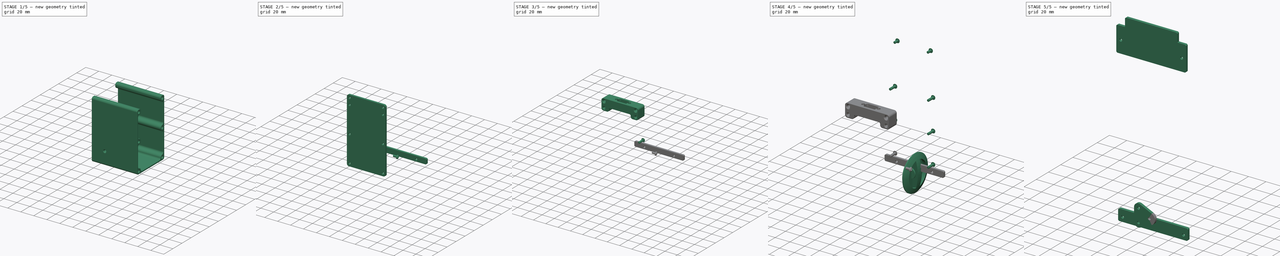
[diagram: build sequence overview — one tinted view per stage of 5, left to right]
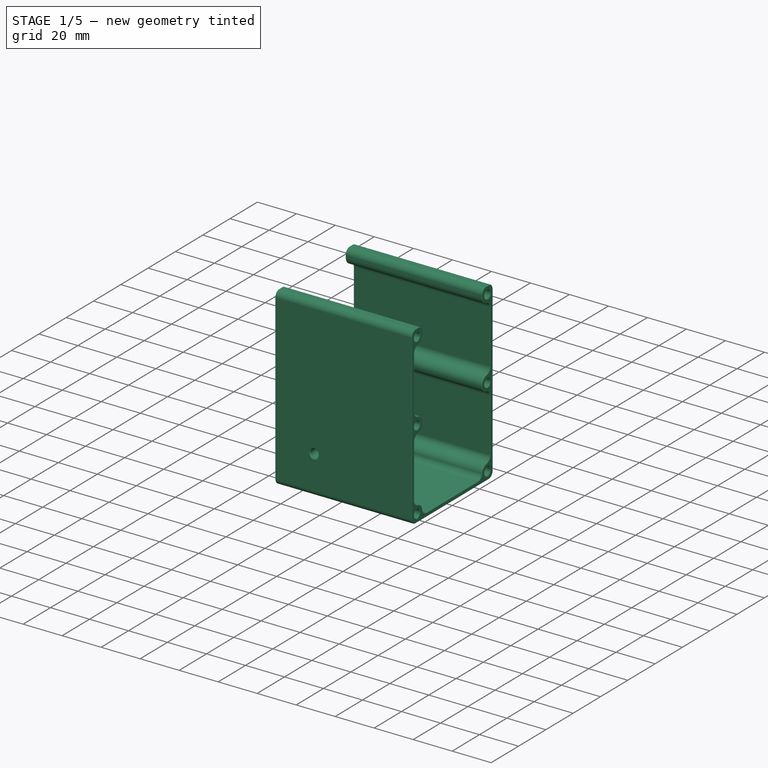
[diagram: stage 1 of 5 — iso view after this stage's code; geometry added in this stage tinted green]
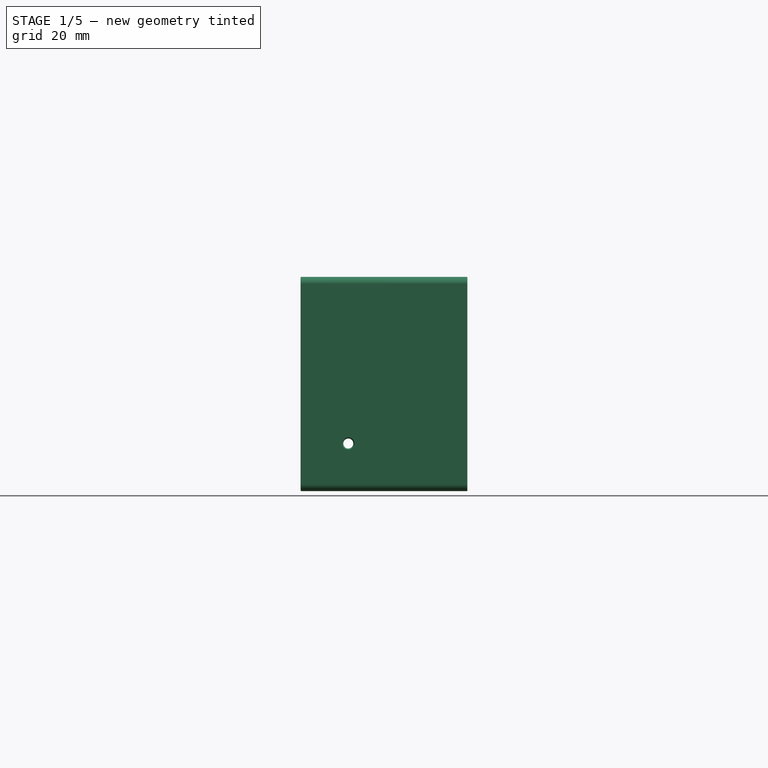
[diagram: stage 1 of 5 — front view after this stage's code; geometry added in this stage tinted green]
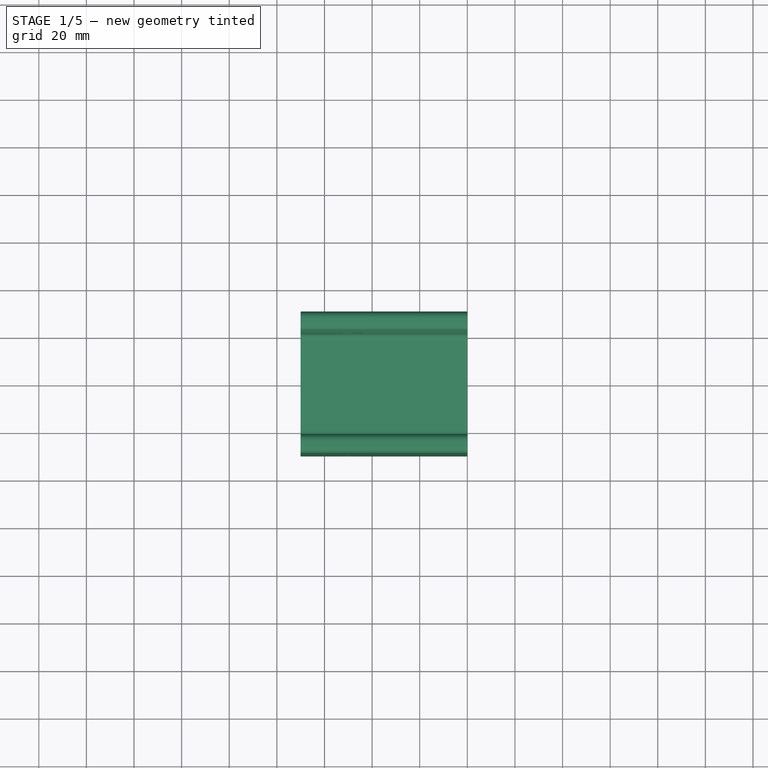
[diagram: stage 1 of 5 — top view after this stage's code; geometry added in this stage tinted green]
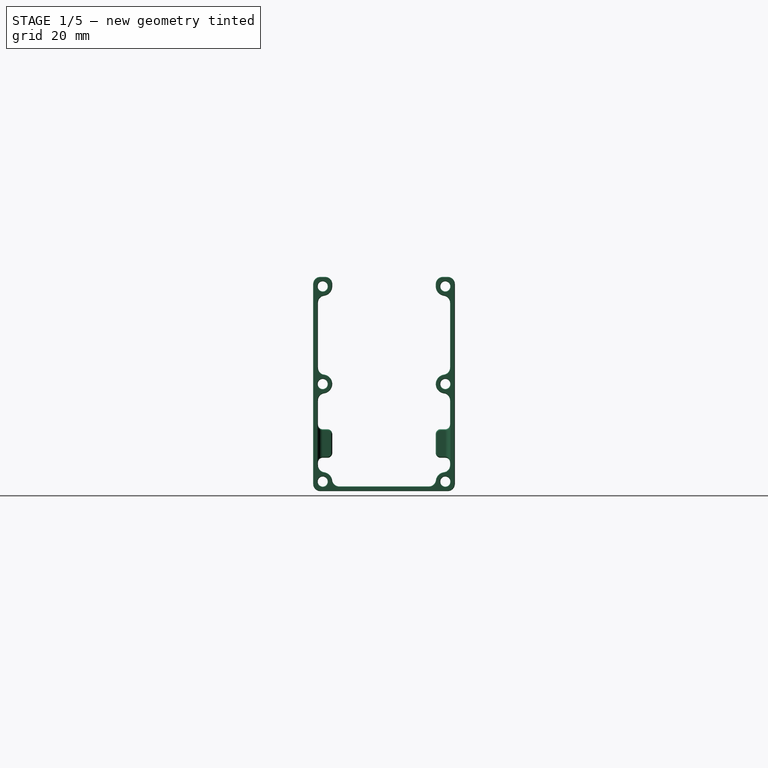
[diagram: stage 1 of 5 — right view after this stage's code; geometry added in this stage tinted green]
FCSTD DOCUMENT  (FreeCAD 2022.1112R26244 +5306 (Git))
Label: battery-assembled
License: Creative Commons Attribution-NoDerivatives
LicenseURL: http://creativecommons.org/licenses/by-nd/4.0/
objects: Sketcher::SketchObject×25, PartDesign::Chamfer×14, PartDesign::Pocket×13, PartDesign::Body×11, PartDesign::Pad×10, Part::FeaturePython×10, PartDesign::Fillet×9, TechDraw::DrawProjGroupItem×7, TechDraw::DrawProjGroup×7, App::Link×4, App::Part×4, PartDesign::SubShapeBinder×4, TechDraw::DrawSVGTemplate×3, TechDraw::DrawPage×3, PartDesign::Revolution×2, App::DocumentObjectGroup×2, PartDesign::Mirrored×1, PartDesign::LinearPattern×1, Part::SubShapeBinder×1
note: 226 computed .brp shape members not serialized (recipe doc carries the construction recipe); baked Part::Feature solids carry a one-line shape summary decoded from their .brp
EXTERNAL_REF file=../robot_holonome_V3.00.FCStd obj=Part

FEATURE [Sketcher::SketchObject] Sketch002
  ArcFitTolerance = 0
  AttachmentSupport = -> [YZ_Plane002]
  ExternalBSplineMaxDegree = 0
  ExternalBSplineTolerance = 0
  FullyConstrained = true
  InternalTolerance = 1e-06
  MakeInternals = false
  MapMode = 5
  Placement = pos=(0,0,0) rot=(-0.57735,0.57735,0.57735;4.18879rad)
  Support = -> [YZ_Plane002]
  TreeRank = 0
  sketch-geometry (4):
    g0: LineSegment StartX=-29.75 StartY=11 StartZ=0 EndX=29.75 EndY=11 EndZ=0
    g1: LineSegment StartX=29.75 StartY=11 StartZ=0 EndX=29.75 EndY=101 EndZ=0
    g2: LineSegment StartX=29.75 StartY=101 StartZ=0 EndX=-29.75 EndY=101 EndZ=0
    g3: LineSegment StartX=-29.75 StartY=101 StartZ=0 EndX=-29.75 EndY=11 EndZ=0
  constraints (11):
    c: Coincident(g0,g1)
    c: Coincident(g1,g2)
    c: Coincident(g2,g3)
    c: Coincident(g3,g0)
    c: Horizontal(g2)
    c: Vertical(g1)
    c: Vertical(g3)
    c: DistanceY(g0) = 11
    c: Symmetric(g0,g0,g-2)
    c: DistanceX(g0,g0) = 59.5
    c: DistanceY(g1,g1) = 90
FEATURE [PartDesign::Pad] Pad002
  AddSubType = 0
  AutoTaperInnerAngle = false
  CheckUpToFaceLimits = true
  ClaimChildren = false
  Direction = (1,1,1)
  Fit = 0
  FitJoin = 0
  InnerFit = 0
  InnerFitJoin = 0
  Length = 70
  Length2 = 100
  Linearize = true
  NewSolid = false
  Placement = pos=(0,0,0) rot=(0.57735,0.57735,0.57735;2.0944rad)
  Profile = -> Sketch002
  Refine = true
  Suppress = false
  TaperInnerAngle = 0
  TaperInnerAngleRev = 0
  TreeRank = 0
  Type = 0
  _ProfileBasedVersion = 1
FEATURE [Sketcher::SketchObject] Sketch003
  ArcFitTolerance = 0
  AttachmentSupport = -> [YZ_Plane002]
  ExternalBSplineMaxDegree = 0
  ExternalBSplineTolerance = 0
  ExternalGeometry = -> [Pad002]
  FullyConstrained = true
  InternalTolerance = 1e-06
  MakeInternals = false
  MapMode = 5
  Placement = pos=(0,0,0) rot=(-0.57735,0.57735,0.57735;4.18879rad)
  Support = -> [YZ_Plane002]
  TreeRank = 0
  sketch-geometry (6):
    g0: Circle CenterX=-25.75 CenterY=15 CenterZ=0 NormalX=0 NormalY=0 NormalZ=1 AngleXU=0 Radius=2.1
    g1: Circle CenterX=25.75 CenterY=15 CenterZ=0 NormalX=0 NormalY=0 NormalZ=1 AngleXU=0 Radius=2.1
    g2: Circle CenterX=-25.75 CenterY=97 CenterZ=0 NormalX=0 NormalY=0 NormalZ=1 AngleXU=0 Radius=2.1
    g3: Circle CenterX=25.75 CenterY=97 CenterZ=0 NormalX=0 NormalY=0 NormalZ=1 AngleXU=0 Radius=2.1
    g4: Circle CenterX=-25.75 CenterY=56 CenterZ=0 NormalX=0 NormalY=0 NormalZ=1 AngleXU=0 Radius=2.1
    g5: Circle CenterX=25.75 CenterY=56 CenterZ=0 NormalX=0 NormalY=0 NormalZ=1 AngleXU=0 Radius=2.1
  constraints (14):
    c: Diameter(g2) = 4.2
    c: Equal(g2,g3)
    c: Equal(g2,g1)
    c: Equal(g2,g0)
    c: Symmetric(g2,g3,g-2)
    c: Symmetric(g0,g1,g-2)
    c: DistanceX(g-4,g2) = 4
    c: DistanceY(g2,g-4) = 4
    c: DistanceY(g-3,g0) = 4
    c: Vertical(g0,g2)
    c: Equal(g5,g4)
    c: Equal(g4,g3)
    c: Symmetric(g4,g5,g-2)
    c: Symmetric(g0,g2,g4)
FEATURE [PartDesign::Pocket] Pocket
  AddSubType = 1
  AutoTaperInnerAngle = false
  BaseFeature = -> Pad002
  CheckUpToFaceLimits = true
  ClaimChildren = false
  Fit = 0
  FitJoin = 0
  InnerFit = 0
  InnerFitJoin = 0
  Length = 5
  Length2 = 100
  Linearize = true
  NewSolid = false
  Placement = pos=(0,0,0) rot=(0.57735,0.57735,0.57735;2.0944rad)
  Profile = -> Sketch003
  Refine = true
  Reversed = true
  Suppress = false
  TaperInnerAngle = 0
  TaperInnerAngleRev = 0
  TreeRank = 0
  Type = 1
  _ProfileBasedVersion = 1
  _Version = 1
FEATURE [Sketcher::SketchObject] Sketch004
  ArcFitTolerance = 0
  AttachmentSupport = -> [YZ_Plane002]
  ExternalBSplineMaxDegree = 0
  ExternalBSplineTolerance = 0
  ExternalGeometry = -> [Pocket]
  FullyConstrained = true
  InternalTolerance = 1e-06
  MakeInternals = false
  MapMode = 5
  Placement = pos=(0,0,0) rot=(0.57735,0.57735,0.57735;2.0944rad)
  Support = -> [YZ_Plane002]
  TreeRank = 0
  sketch-geometry (14):
    g0: LineSegment StartX=-27.75 StartY=59.4641 StartZ=0 EndX=-27.75 EndY=93.5359 EndZ=0
    g1: LineSegment StartX=27.75 StartY=93.5359 StartZ=0 EndX=27.75 EndY=59.4641 EndZ=0
    g2: LineSegment StartX=-27.75 StartY=52.5359 StartZ=0 EndX=-27.75 EndY=18.4641 EndZ=0
    g3: LineSegment StartX=-22.2859 StartY=13 StartZ=0 EndX=22.2859 EndY=13 EndZ=0
    g4: LineSegment StartX=27.75 StartY=18.4641 StartZ=0 EndX=27.75 EndY=52.5359 EndZ=0
    g5: LineSegment StartX=21.75 StartY=101 StartZ=0 EndX=21.75 EndY=97 EndZ=0
    g6: LineSegment StartX=-21.75 StartY=101 StartZ=0 EndX=-21.75 EndY=97 EndZ=0
    g7: ArcOfCircle CenterX=-25.75 CenterY=97 CenterZ=0 NormalX=0 NormalY=0 NormalZ=1 AngleXU=0 Radius=4 StartAngle=4.18879 EndAngle=6.28319
    g8: ArcOfCircle CenterX=-25.75 CenterY=56 CenterZ=0 NormalX=0 NormalY=0 NormalZ=1 AngleXU=0 Radius=4 StartAngle=4.18879 EndAngle=8.37758
    g9: ArcOfCircle CenterX=-25.75 CenterY=15 CenterZ=0 NormalX=0 NormalY=0 NormalZ=1 AngleXU=0 Radius=4 StartAngle=5.75959 EndAngle=8.37758
    g10: ArcOfCircle CenterX=25.75 CenterY=15 CenterZ=0 NormalX=0 NormalY=0 NormalZ=1 AngleXU=0 Radius=4 StartAngle=1.0472 EndAngle=3.66519
    g11: ArcOfCircle CenterX=25.75 CenterY=56 CenterZ=0 NormalX=0 NormalY=0 NormalZ=1 AngleXU=0 Radius=4 StartAngle=1.0472 EndAngle=5.23599
    g12: ArcOfCircle CenterX=25.75 CenterY=97 CenterZ=0 NormalX=0 NormalY=0 NormalZ=1 AngleXU=0 Radius=4 StartAngle=3.14159 EndAngle=5.23599
    g13: LineSegment StartX=-21.75 StartY=101 StartZ=0 EndX=21.75 EndY=101 EndZ=0
  constraints (38):
    c: Vertical(g0)
    c: Vertical(g1)
    c: Vertical(g2)
    c: Vertical(g4)
    c: PointOnObject(g5,g-3)
    c: Vertical(g5)
    c: Vertical(g6)
    c: Coincident(g7,g-4)
    c: Coincident(g7,g0)
    c: Coincident(g8,g-6)
    c: Coincident(g8,g0)
    c: Coincident(g8,g2)
    c: Coincident(g9,g-7)
    c: Coincident(g9,g2)
    c: Coincident(g9,g3)
    c: Coincident(g10,g-8)
    c: Coincident(g10,g3)
    c: Coincident(g10,g4)
    c: Coincident(g11,g-9)
    c: Coincident(g11,g1)
    c: Coincident(g11,g4)
    c: Coincident(g12,g-5)
    c: Coincident(g12,g1)
    c: Symmetric(g6,g5,g-2)
    c: Symmetric(g3,g3,g-2)
    c: Equal(g10,g11)
    c: Equal(g11,g8)
    c: Equal(g8,g7)
    c: Tangent(g7,g6) = 1.5708
    c: Tangent(g12,g5) = -1.5708
    c: Vertical(g1,g4)
    c: Vertical(g2,g0)
    c: DistanceY(g-10,g3) = 2
    c: DistanceX(g-10,g2) = 2
    c: Symmetric(g4,g2,g-2)
    c: Radius(g7) = 4
    c: Coincident(g13,g6)
    c: Coincident(g13,g5)
FEATURE [PartDesign::Pocket] Pocket001
  AddSubType = 1
  AutoTaperInnerAngle = false
  BaseFeature = -> Pocket
  CheckUpToFaceLimits = true
  ClaimChildren = false
  Fit = 0
  FitJoin = 0
  InnerFit = 0
  InnerFitJoin = 0
  Length = 5
  Length2 = 100
  Linearize = true
  NewSolid = false
  Placement = pos=(0,0,0) rot=(0.57735,0.57735,0.57735;2.0944rad)
  Profile = -> Sketch004
  Refine = true
  Suppress = false
  TaperInnerAngle = 0
  TaperInnerAngleRev = 0
  TreeRank = 0
  Type = 1
  _ProfileBasedVersion = 1
  _Version = 1
FEATURE [PartDesign::Fillet] Fillet
  AddSubType = 0
  Base = -> Pocket001 [Edge65,Edge64,Edge63,Edge62,Edge61,Edge60,Edge59,Edge58,Edge57,Edge56]
  BaseFeature = -> Pocket001
  NewSolid = false
  Placement = pos=(0,0,0) rot=(0.57735,0.57735,0.57735;2.0944rad)
  Radius = 3
  Refine = true
  SupportTransform = false
  Suppress = false
  TreeRank = 0
FEATURE [PartDesign::Fillet] Fillet001
  AddSubType = 0
  Base = -> Fillet [Edge56,Edge45,Edge48,Edge52,Edge61,Edge41]
  BaseFeature = -> Fillet
  NewSolid = false
  Placement = pos=(0,0,0) rot=(0.57735,0.57735,0.57735;2.0944rad)
  Radius = 3
  Refine = true
  SupportTransform = false
  Suppress = false
  TreeRank = 0
FEATURE [PartDesign::Body] Body010  label="CarterSup"
  AutoGroupSolids = false
  ClaimAllChildren = false
  ExportMode = 0
  Group = -> [Binder003,Sketch022,Pad008,Chamfer010]
  Origin = -> Origin013
  SingleSolid = true
  Tip = -> Chamfer010
  TreeRank = 169
  _ExportChildren = -> [Binder003,Pad008,Chamfer010]
  _GroupVersion = 1
FEATURE [App::Part] Part003  label="Fixe"
  ClaimAllChildren = false
  ExportMode = 1
  Group = -> [Body009,Part001,Body010]
  Origin = -> Origin014
  TreeRank = 172
  _ExportChildren = -> [Body009,Part001,Body010]
  _GroupVersion = 1
FEATURE [TechDraw::DrawSVGTemplate] Template002
  Height = 210
  Orientation = 1
  TreeRank = 179
  Width = 297
FEATURE [TechDraw::DrawProjGroupItem] ProjItem007  label="Front007"
  CoarseView = false
  Direction = (0,1,0)
  Focus = 100
  HardHidden = false
  IsoCount = 0
  IsoHidden = false
  IsoVisible = false
  LockPosition = true
  Perspective = false
  Rotation = 0
  RotationVector = (1,0,0)
  ScaleType = 2
  SeamHidden = false
  SeamVisible = true
  SmoothHidden = false
  SmoothVisible = true
  Source = -> [Chamfer010]
  TreeRank = 182
  Type = 0
  X = 0
  XDirection = (1,0,0)
  Y = 0
FEATURE [TechDraw::DrawProjGroup] ProjGroup007
  Anchor = -> ProjItem007
  AutoDistribute = true
  LockPosition = false
  ProjectionType = 0
  Rotation = 0
  ScaleType = 0
  Source = -> [Chamfer010]
  TreeRank = 183
  Views = -> [ProjItem007]
  X = 42.1034
  Y = 189.051
  spacingX = 15
  spacingY = 15
FEATURE [TechDraw::DrawPage] Page002  label="Laser3mmCarterSup"
  KeepUpdated = true
  NextBalloonIndex = 1
  ProjectionType = 0
  Template = -> Template002
  TreeRank = 180
  Views = -> [ProjGroup007]
FEATURE [App::DocumentObjectGroup] Group001  label="Laser"
  ClaimAllChildren = true
  ExportMode = 1
  Group = -> [Page001,Page,Page002]
  TreeRank = 173
  _GroupVersion = 1
FEATURE [Sketcher::SketchObject] Sketch023
  ArcFitTolerance = 0
  AttachmentSupport = -> [Fillet001]
  ExternalBSplineMaxDegree = 0
  ExternalBSplineTolerance = 0
  ExternalGeometry = -> [Fillet001]
  FullyConstrained = true
  InternalTolerance = 1e-06
  MakeInternals = false
  MapMode = 5
  Placement = pos=(-70,3.08e-14,-1.54e-14) rot=(-0.57735,-0.57735,0.57735;2.0944rad)
  Support = -> [Fillet001]
  TreeRank = 184
  sketch-geometry (10):
    g0: LineSegment StartX=-29.75 StartY=-25 StartZ=0 EndX=-29.75 EndY=-37 EndZ=0
    g1: LineSegment StartX=-29.75 StartY=-37 StartZ=0 EndX=-21.75 EndY=-37 EndZ=0
    g2: LineSegment StartX=-21.75 StartY=-37 StartZ=0 EndX=-21.75 EndY=-25 EndZ=0
    g3: LineSegment StartX=-21.75 StartY=-25 StartZ=0 EndX=-29.75 EndY=-25 EndZ=0
    g4: GeomPoint [constr] X=-25.75 Y=-31 Z=0
    g5: LineSegment StartX=21.75 StartY=-25 StartZ=0 EndX=21.75 EndY=-37 EndZ=0
    g6: LineSegment StartX=21.75 StartY=-37 StartZ=0 EndX=29.75 EndY=-37 EndZ=0
    g7: LineSegment StartX=29.75 StartY=-37 StartZ=0 EndX=29.75 EndY=-25 EndZ=0
    g8: LineSegment StartX=29.75 StartY=-25 StartZ=0 EndX=21.75 EndY=-25 EndZ=0
    g9: GeomPoint [constr] X=25.75 Y=-31 Z=0
  constraints (25):
    c: Coincident(g0,g1)
    c: Coincident(g1,g2)
    c: Coincident(g2,g3)
    c: Coincident(g3,g0)
    c: Horizontal(g1)
    c: Horizontal(g3)
    c: Vertical(g0)
    c: Vertical(g2)
    c: Symmetric(g1,g0,g4)
    c: PointOnObject(g0,g-4)
    c: DistanceY(g4,g-3) = 20
    c: Coincident(g5,g6)
    c: Coincident(g6,g7)
    c: Coincident(g7,g8)
    c: Coincident(g8,g5)
    c: Horizontal(g6)
    c: Horizontal(g8)
    c: Vertical(g5)
    c: Vertical(g7)
    c: Symmetric(g6,g5,g9)
    c: Symmetric(g7,g0,g-2)
    c: PointOnObject(g5,g1)
    c: Equal(g8,g3)
    c: DistanceY(g2,g2) = 12
    c: DistanceX(g3,g3) = 8
FEATURE [PartDesign::Pad] Pad009
  AddSubType = 0
  AlongSketchNormal = false
  AutoTaperInnerAngle = false
  BaseFeature = -> Fillet001
  CheckUpToFaceLimits = true
  ClaimChildren = false
  Direction = (-1,4e-16,-3e-16)
  Fit = 0
  FitJoin = 0
  InnerFit = 0
  InnerFitJoin = 0
  Length = 26
  Length2 = 100
  Linearize = true
  NewSolid = false
  Placement = pos=(0,0,0) rot=(0.57735,0.57735,0.57735;2.0944rad)
  Profile = -> Sketch023
  Refine = true
  Reversed = true
  Suppress = false
  TaperInnerAngle = 0
  TaperInnerAngleRev = 0
  TreeRank = 185
  Type = 0
  _ProfileBasedVersion = 1
FEATURE [Sketcher::SketchObject] Sketch024
  ArcFitTolerance = 0
  AttachmentSupport = -> [XZ_Plane002]
  ExternalBSplineMaxDegree = 0
  ExternalBSplineTolerance = 0
  ExternalGeometry = -> [Pad009]
  FullyConstrained = true
  InternalTolerance = 1e-06
  MakeInternals = false
  MapMode = 5
  Placement = pos=(0,0,0) rot=(1,0,0;1.5708rad)
  Support = -> [XZ_Plane002]
  TreeRank = 186
  sketch-geometry (1):
    g0: Circle CenterX=-50 CenterY=31 CenterZ=0 NormalX=0 NormalY=0 NormalZ=1 AngleXU=0 Radius=2.1
  constraints (3):
    c: DistanceY(g-4,g0) = 20
    c: DistanceX(g-3,g0) = 20
    c: Diameter(g0) = 4.2
FEATURE [PartDesign::Pocket] Pocket012
  AddSubType = 1
  AutoTaperInnerAngle = false
  BaseFeature = -> Pad009
  CheckUpToFaceLimits = true
  ClaimChildren = false
  Fit = 0
  FitJoin = 0
  InnerFit = 0
  InnerFitJoin = 0
  Length = 5
  Length2 = 100
  Linearize = true
  Midplane = true
  NewSolid = false
  Placement = pos=(0,0,0) rot=(0.57735,0.57735,0.57735;2.0944rad)
  Profile = -> Sketch024
  Refine = true
  Suppress = false
  TaperInnerAngle = 0
  TaperInnerAngleRev = 0
  TreeRank = 187
  Type = 1
  _ProfileBasedVersion = 1
  _Version = 1
FEATURE [PartDesign::Fillet] Fillet007
  AddSubType = 0
  Base = -> Pocket012 [Edge147,Edge150,Edge143,Edge140,Edge110,Edge112,Edge75,Edge73]
  BaseFeature = -> Pocket012
  NewSolid = false
  Placement = pos=(0,0,0) rot=(0.57735,0.57735,0.57735;2.0944rad)
  Radius = 2
  Refine = true
  SupportTransform = false
  Suppress = false
  TreeRank = 188
FEATURE [PartDesign::Chamfer] Chamfer011
  AddSubType = 0
  Angle = 45
  Base = -> Fillet007 [Edge120,Edge132,Edge141,Edge160]
  BaseFeature = -> Fillet007
  ChamferType = 0
  FlipDirection = false
  NewSolid = false
  Placement = pos=(0,0,0) rot=(0.57735,0.57735,0.57735;2.0944rad)
  Refine = true
  Size = 0.5
  Size2 = 1
  SupportTransform = false
  Suppress = false
  TreeRank = 189
FEATURE [PartDesign::Fillet] Fillet008
  AddSubType = 0
  Base = -> Chamfer011 [Edge70,Edge133]
  BaseFeature = -> Chamfer011
  NewSolid = false
  Placement = pos=(0,0,0) rot=(0.57735,0.57735,0.57735;2.0944rad)
  Radius = 2
  Refine = true
  SupportTransform = false
  Suppress = false
  TreeRank = 190
FEATURE [PartDesign::Chamfer] Chamfer012
  AddSubType = 0
  Angle = 45
  Base = -> Fillet008 [Edge159,Edge68]
  BaseFeature = -> Fillet008
  ChamferType = 0
  FlipDirection = false
  NewSolid = false
  Placement = pos=(0,0,0) rot=(0.57735,0.57735,0.57735;2.0944rad)
  Refine = true
  Size = 0.4
  Size2 = 1
  SupportTransform = false
  Suppress = false
  TreeRank = 191
FEATURE [PartDesign::Chamfer] Chamfer013
  AddSubType = 0
  Angle = 45
  Base = -> Chamfer012 [Face4,Face8]
  BaseFeature = -> Chamfer012
  ChamferType = 0
  FlipDirection = false
  NewSolid = false
  Placement = pos=(0,0,0) rot=(0.57735,0.57735,0.57735;2.0944rad)
  Refine = true
  Size = 0.2
  Size2 = 1
  SupportTransform = false
  Suppress = false
  TreeRank = 192
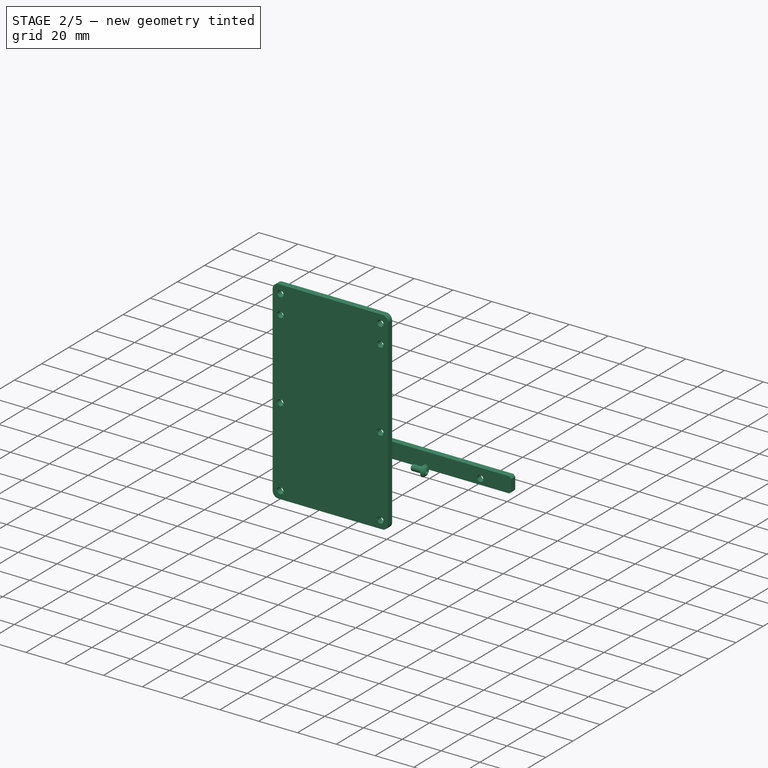
[diagram: stage 2 of 5 — iso view after this stage's code; geometry added in this stage tinted green]
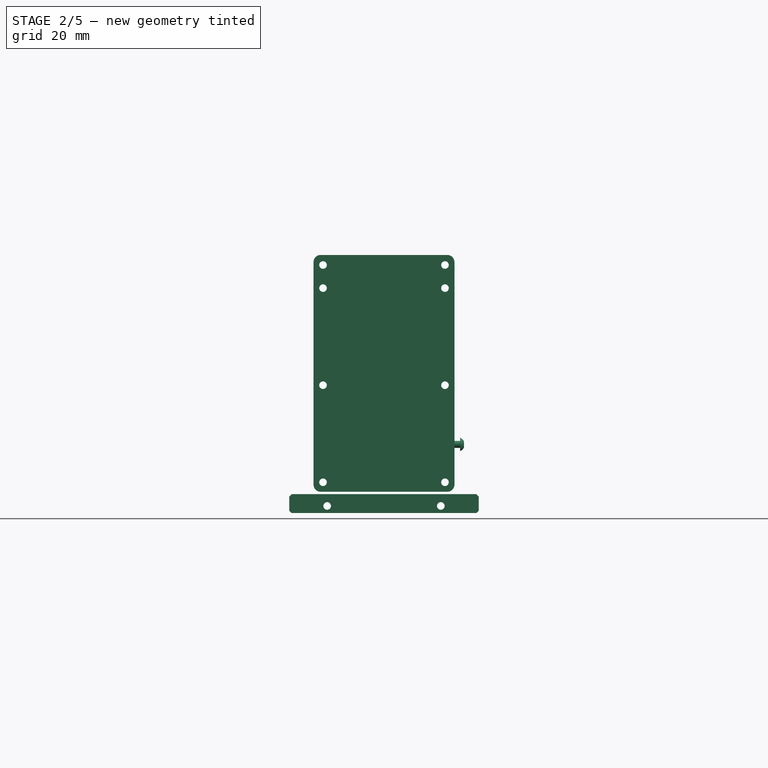
[diagram: stage 2 of 5 — front view after this stage's code; geometry added in this stage tinted green]
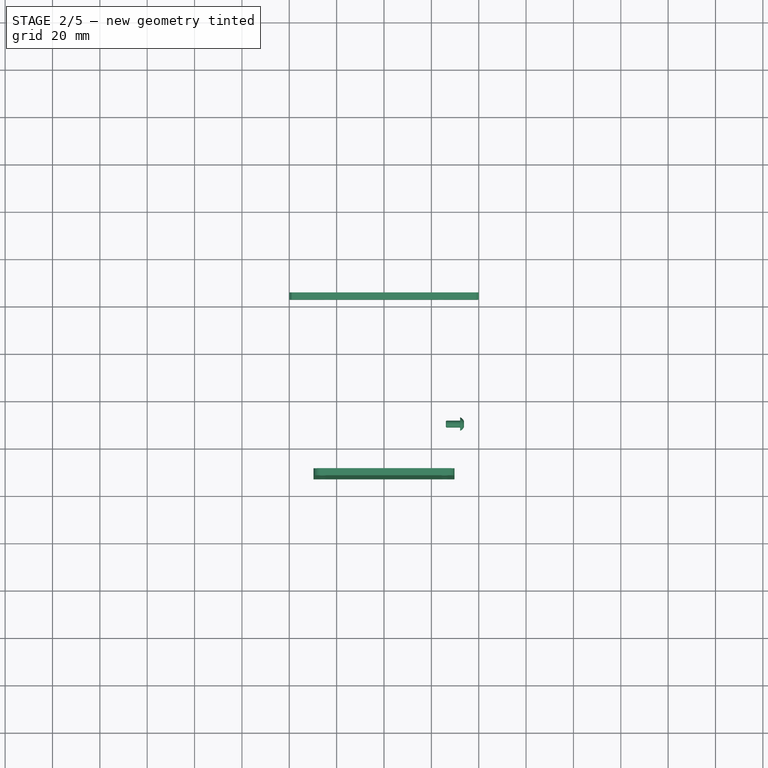
[diagram: stage 2 of 5 — top view after this stage's code; geometry added in this stage tinted green]
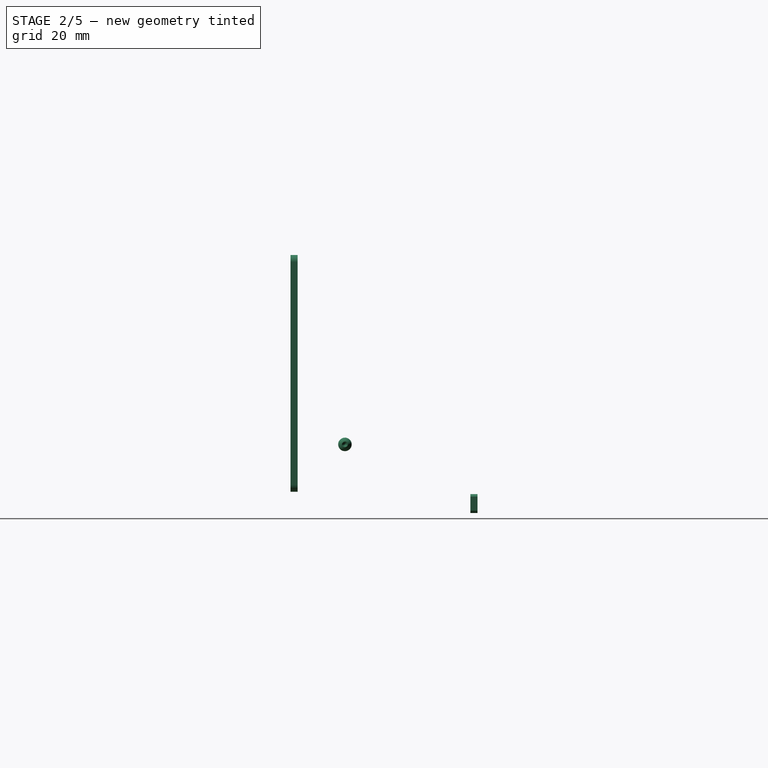
[diagram: stage 2 of 5 — right view after this stage's code; geometry added in this stage tinted green]
FEATURE [Sketcher::SketchObject] Sketch
  ArcFitTolerance = 0
  AttachmentSupport = -> [YZ_Plane]
  ExternalBSplineMaxDegree = 0
  ExternalBSplineTolerance = 0
  FullyConstrained = true
  InternalTolerance = 1e-06
  MakeInternals = false
  MapMode = 5
  Placement = pos=(0,0,0) rot=(0.57735,0.57735,0.57735;2.0944rad)
  Support = -> [YZ_Plane]
  TreeRank = 0
  sketch-geometry (4):
    g0: LineSegment StartX=-40 StartY=0 StartZ=0 EndX=40 EndY=0 EndZ=0
    g1: LineSegment StartX=40 StartY=0 StartZ=0 EndX=40 EndY=160 EndZ=0
    g2: LineSegment StartX=40 StartY=160 StartZ=0 EndX=-40 EndY=160 EndZ=0
    g3: LineSegment StartX=-40 StartY=160 StartZ=0 EndX=-40 EndY=0 EndZ=0
  constraints (11):
    c: Coincident(g0,g1)
    c: Coincident(g1,g2)
    c: Coincident(g2,g3)
    c: Coincident(g3,g0)
    c: Horizontal(g0)
    c: Horizontal(g2)
    c: Vertical(g1)
    c: Vertical(g3)
    c: Symmetric(g0,g0,g-1)
    c: DistanceX(g0,g0) = 80
    c: DistanceY(g1,g1) = 160
FEATURE [PartDesign::Pad] Pad
  AddSubType = 0
  AutoTaperInnerAngle = false
  CheckUpToFaceLimits = true
  ClaimChildren = false
  Direction = (1,1,1)
  Fit = 0
  FitJoin = 0
  InnerFit = 0
  InnerFitJoin = 0
  Length = 3
  Length2 = 100
  Linearize = true
  NewSolid = false
  Placement = pos=(0,0,0) rot=(0.57735,0.57735,0.57735;2.0944rad)
  Profile = -> Sketch
  Refine = true
  Suppress = false
  TaperInnerAngle = 0
  TaperInnerAngleRev = 0
  TreeRank = 0
  Type = 0
  _ProfileBasedVersion = 1
FEATURE [PartDesign::Body] Body001  label="ContrePlaque"
  AutoGroupSolids = false
  ClaimAllChildren = false
  ExportMode = 0
  Group = -> [Sketch001,Pad001,Chamfer,Sketch005,Pocket002]
  Origin = -> Origin001
  Placement = pos=(0,0,0) rot=(0,0,1;1.5708rad)
  SingleSolid = true
  Tip = -> Pocket002
  TreeRank = 0
  _ExportChildren = -> [Pad001,Chamfer,Pocket002]
  _GroupVersion = 1
FEATURE [Sketcher::SketchObject] Sketch006
  ArcFitTolerance = 0
  AttachmentSupport = -> [YZ_Plane]
  ExternalBSplineMaxDegree = 0
  ExternalBSplineTolerance = 0
  FullyConstrained = true
  InternalTolerance = 1e-06
  MakeInternals = false
  MapMode = 5
  Placement = pos=(0,0,0) rot=(0.57735,0.57735,0.57735;2.0944rad)
  Support = -> [YZ_Plane]
  TreeRank = 0
  sketch-geometry (2):
    g0: Circle CenterX=-24 CenterY=5 CenterZ=0 NormalX=0 NormalY=0 NormalZ=1 AngleXU=0 Radius=1.6
    g1: Circle CenterX=24 CenterY=5 CenterZ=0 NormalX=0 NormalY=0 NormalZ=1 AngleXU=0 Radius=1.6
  constraints (5):
    c: Diameter(g0) = 3.2
    c: Equal(g0,g1)
    c: Symmetric(g0,g1,g-2)
    c: DistanceY(g-1,g0) = 5
    c: DistanceX(g1) = 24
FEATURE [PartDesign::Pocket] Pocket003
  AddSubType = 1
  AutoTaperInnerAngle = false
  BaseFeature = -> Pad
  CheckUpToFaceLimits = true
  ClaimChildren = false
  Fit = 0
  FitJoin = 0
  InnerFit = 0
  InnerFitJoin = 0
  Length = 5
  Length2 = 100
  Linearize = true
  NewSolid = false
  Placement = pos=(0,0,0) rot=(0.57735,0.57735,0.57735;2.0944rad)
  Profile = -> Sketch006
  Refine = true
  Reversed = true
  Suppress = false
  TaperInnerAngle = 0
  TaperInnerAngleRev = 0
  TreeRank = 0
  Type = 1
  _ProfileBasedVersion = 1
  _Version = 1
FEATURE [PartDesign::Chamfer] Chamfer001
  AddSubType = 0
  Angle = 45
  Base = -> Pocket003 [Edge1,Edge2]
  BaseFeature = -> Pocket003
  ChamferType = 0
  FlipDirection = false
  NewSolid = false
  Placement = pos=(0,0,0) rot=(0.57735,0.57735,0.57735;2.0944rad)
  Refine = true
  Size = 1
  Size2 = 1
  SupportTransform = false
  Suppress = false
  TreeRank = 0
FEATURE [Sketcher::SketchObject] Sketch007
  ArcFitTolerance = 0
  AttachmentSupport = -> [YZ_Plane]
  ExternalBSplineMaxDegree = 0
  ExternalBSplineTolerance = 0
  FullyConstrained = true
  InternalTolerance = 1e-06
  MakeInternals = false
  MapMode = 5
  Placement = pos=(0,0,0) rot=(0.57735,0.57735,0.57735;2.0944rad)
  Support = -> [YZ_Plane]
  TreeRank = 0
  sketch-geometry (6):
    g0: Circle CenterX=-25.75 CenterY=97 CenterZ=0 NormalX=0 NormalY=0 NormalZ=1 AngleXU=0 Radius=1.6
    g1: Circle CenterX=25.75 CenterY=97 CenterZ=0 NormalX=0 NormalY=0 NormalZ=1 AngleXU=0 Radius=1.6
    g2: Circle CenterX=25.75 CenterY=56 CenterZ=0 NormalX=0 NormalY=0 NormalZ=1 AngleXU=0 Radius=1.6
    g3: Circle CenterX=-25.75 CenterY=56 CenterZ=0 NormalX=0 NormalY=0 NormalZ=1 AngleXU=0 Radius=1.6
    g4: Circle CenterX=-25.75 CenterY=15 CenterZ=0 NormalX=0 NormalY=0 NormalZ=1 AngleXU=0 Radius=1.6
    g5: Circle CenterX=25.75 CenterY=15 CenterZ=0 NormalX=0 NormalY=0 NormalZ=1 AngleXU=0 Radius=1.6
  constraints (14):
    c: Symmetric(g5,g4,g-2)
    c: Vertical(g4,g3)
    c: Diameter(g1) = 3.2
    c: Equal(g1,g2)
    c: Equal(g1,g5)
    c: Equal(g1,g4)
    c: Equal(g1,g3)
    c: Equal(g1,g0)
    c: DistanceX(g5) = 25.75
    c: DistanceY(g5) = 15
    c: DistanceY(g1) = 97
    c: Symmetric(g1,g5,g2)
    c: Symmetric(g0,g1,g-2)
    c: Symmetric(g3,g2,g-2)
FEATURE [PartDesign::Pocket] Pocket004
  AddSubType = 1
  AutoTaperInnerAngle = false
  BaseFeature = -> Chamfer001
  CheckUpToFaceLimits = true
  ClaimChildren = false
  Fit = 0
  FitJoin = 0
  InnerFit = 0
  InnerFitJoin = 0
  Length = 5
  Length2 = 100
  Linearize = true
  NewSolid = false
  Placement = pos=(0,0,0) rot=(0.57735,0.57735,0.57735;2.0944rad)
  Profile = -> Sketch007
  Refine = true
  Reversed = true
  Suppress = false
  TaperInnerAngle = 0
  TaperInnerAngleRev = 0
  TreeRank = 0
  Type = 1
  _ProfileBasedVersion = 1
  _Version = 1
FEATURE [Sketcher::SketchObject] Sketch008
  ArcFitTolerance = 0
  AttachmentSupport = -> [YZ_Plane]
  ExternalBSplineMaxDegree = 0
  ExternalBSplineTolerance = 0
  FullyConstrained = true
  InternalTolerance = 1e-06
  MakeInternals = false
  MapMode = 5
  Placement = pos=(0,0,0) rot=(0.57735,0.57735,0.57735;2.0944rad)
  Support = -> [YZ_Plane]
  TreeRank = 0
  sketch-geometry (1):
    g0: Circle CenterX=0 CenterY=130 CenterZ=0 NormalX=0 NormalY=0 NormalZ=1 AngleXU=0 Radius=20
  constraints (3):
    c: PointOnObject(g0,g-2)
    c: Diameter(g0) = 40
    c: DistanceY(g0) = 130
FEATURE [PartDesign::Pocket] Pocket005
  AddSubType = 1
  AutoTaperInnerAngle = false
  BaseFeature = -> Pocket004
  CheckUpToFaceLimits = true
  ClaimChildren = false
  Fit = 0
  FitJoin = 0
  InnerFit = 0
  InnerFitJoin = 0
  Length = 5
  Length2 = 100
  Linearize = true
  NewSolid = false
  Placement = pos=(0,0,0) rot=(0.57735,0.57735,0.57735;2.0944rad)
  Profile = -> Sketch008
  Refine = true
  Reversed = true
  Suppress = false
  TaperInnerAngle = 0
  TaperInnerAngleRev = 0
  TreeRank = 0
  Type = 1
  _ProfileBasedVersion = 1
  _Version = 1
FEATURE [PartDesign::Body] Body003  label="PoigneeBatterie"
  AutoGroupSolids = false
  ClaimAllChildren = false
  ExportMode = 0
  Group = -> [Sketch009,Revolution,Sketch010,Pocket006,Mirrored,Chamfer002,Fillet002,Chamfer003,Chamfer004]
  Origin = -> Origin004
  Placement = pos=(-5.613e-13,-1.28746e-05,130) rot=(0.57735,0.57735,0.57735;2.0944rad)
  SingleSolid = true
  Tip = -> Chamfer004
  TreeRank = 0
  _ExportChildren = -> [Revolution,Pocket006,Mirrored,Chamfer002,Fillet002,Chamfer003,Chamfer004]
  _GroupVersion = 1
FEATURE [PartDesign::Chamfer] Chamfer005
  AddSubType = 0
  Angle = 45
  Base = -> Pocket005 [Edge36,Edge35]
  BaseFeature = -> Pocket005
  ChamferType = 0
  FlipDirection = false
  NewSolid = false
  Placement = pos=(0,0,0) rot=(0.57735,0.57735,0.57735;2.0944rad)
  Refine = true
  Size = 1
  Size2 = 1
  SupportTransform = false
  Suppress = false
  TreeRank = 0
FEATURE [Sketcher::SketchObject] Sketch011
  ArcFitTolerance = 0
  AttachmentSupport = -> [YZ_Plane]
  ExternalBSplineMaxDegree = 0
  ExternalBSplineTolerance = 0
  ExternalGeometry = -> [Chamfer005]
  FullyConstrained = true
  InternalTolerance = 1e-06
  MakeInternals = false
  MapMode = 5
  Placement = pos=(0,0,0) rot=(0.57735,0.57735,0.57735;2.0944rad)
  Support = -> [YZ_Plane]
  TreeRank = 1
  sketch-geometry (4):
    g0: Circle CenterX=-22.5 CenterY=153.5 CenterZ=0 NormalX=0 NormalY=0 NormalZ=1 AngleXU=0 Radius=1.6
    g1: Circle [constr] CenterX=-22.5 CenterY=153.5 CenterZ=0 NormalX=0 NormalY=0 NormalZ=1 AngleXU=0 Radius=6.5
    g2: GeomPoint [constr] X=-29 Y=153.5 Z=0
    g3: Circle CenterX=22.5 CenterY=153.5 CenterZ=0 NormalX=0 NormalY=0 NormalZ=1 AngleXU=0 Radius=1.6
  constraints (9):
    c: Coincident(g1,g0)
    c: Tangent(g1,g-4)
    c: Diameter(g1) = 13
    c: Diameter(g0) = 3.2
    c: PointOnObject(g2,g1)
    c: Horizontal(g2,g0)
    c: DistanceX(g-3,g2) = 11
    c: Symmetric(g0,g3,g-2)
    c: Equal(g3,g0)
FEATURE [PartDesign::Pocket] Pocket007
  AddSubType = 1
  AutoTaperInnerAngle = false
  BaseFeature = -> Chamfer005
  CheckUpToFaceLimits = true
  ClaimChildren = false
  Fit = 0
  FitJoin = 0
  InnerFit = 0
  InnerFitJoin = 0
  Length = 5
  Length2 = 100
  Linearize = true
  NewSolid = false
  Placement = pos=(0,0,0) rot=(0.57735,0.57735,0.57735;2.0944rad)
  Profile = -> Sketch011
  Refine = true
  Reversed = true
  Suppress = false
  TaperInnerAngle = 0
  TaperInnerAngleRev = 0
  TreeRank = 2
  Type = 1
  _ProfileBasedVersion = 1
  _Version = 1
FEATURE [PartDesign::Body] Body005  label="SupportMagnet"
  AutoGroupSolids = false
  ClaimAllChildren = false
  ExportMode = 0
  Group = -> [Sketch013,Pad003]
  Origin = -> Origin006
  Placement = pos=(-22.5,-10,153.5) rot=(0,0,1;0rad)
  SingleSolid = true
  Tip = -> Pad003
  TreeRank = 55
  _ExportChildren = -> [Pad003]
  _GroupVersion = 1
FEATURE [App::Link] Link003  label="Link003(SupportMagnet)"
  AutoLinkLabel = true
  AutoPlacement = true
  LinkPlacement = pos=(22.5,-10,153.5) rot=(0,1,0;3.14159rad)
  LinkedObject = -> Body005
  Placement = pos=(22.5,-10,153.5) rot=(0,1,0;3.14159rad)
  SyncGroupVisibility = false
  TreeRank = 58
  _LinkVersion = 1
FEATURE [App::Part] Part001  label="SupportMagnetAssembled"
  ClaimAllChildren = false
  ExportMode = 1
  Group = -> [Link003,Body005,Link002,Link001]
  Origin = -> Origin007
  TreeRank = 61
  _ExportChildren = -> [Link003,Body005,Link002,Link001]
  _GroupVersion = 1
FEATURE [PartDesign::SubShapeBinder] Binder  label="Binder(Fillet001)"
  BindCopyOnChange = 0
  BindMode = 0
  ClaimChildren = false
  Context = -> <external ../robot_holonome_V3.00.FCStd>#Part [Link013.Part002.Body006.Binder.]
  EdgeTolerance = 1e-06
  FillStyle = 0
  Fuse = false
  MakeFace = true
  MergeEdges = true
  OffsetFill = false
  OffsetIntersection = false
  OffsetJoinType = 0
  OffsetOpenResult = false
  Outline = false
  PartialLoad = false
  Relative = true
  SplitEdges = false
  Support = -> [Body002[Fillet001.Face42]]
  TightBound = false
  TreeRank = 75
  _Version = 8
FEATURE [Sketcher::SketchObject] Sketch014
  ArcFitTolerance = 0
  AttachmentSupport = -> [Binder]
  ExternalBSplineMaxDegree = 0
  ExternalBSplineTolerance = 0
  ExternalGeometry = -> [Binder]
  FullyConstrained = true
  InternalTolerance = 1e-06
  MakeInternals = false
  MapMode = 5
  Placement = pos=(1.18011e-05,-70,-1.54e-14) rot=(1,0,0;1.5708rad)
  Support = -> [Binder]
  TreeRank = 76
  sketch-geometry (18):
    g0: Circle CenterX=-25.75 CenterY=97 CenterZ=0 NormalX=0 NormalY=0 NormalZ=1 AngleXU=0 Radius=1.6
    g1: Circle CenterX=25.75 CenterY=97 CenterZ=0 NormalX=0 NormalY=0 NormalZ=1 AngleXU=0 Radius=1.6
    g2: Circle CenterX=25.75 CenterY=56 CenterZ=0 NormalX=0 NormalY=0 NormalZ=1 AngleXU=0 Radius=1.6
    g3: Circle CenterX=-25.75 CenterY=56 CenterZ=0 NormalX=0 NormalY=0 NormalZ=1 AngleXU=0 Radius=1.6
    g4: Circle CenterX=-25.75 CenterY=15 CenterZ=0 NormalX=0 NormalY=0 NormalZ=1 AngleXU=0 Radius=1.6
    g5: Circle CenterX=25.75 CenterY=15 CenterZ=0 NormalX=0 NormalY=0 NormalZ=1 AngleXU=0 Radius=1.6
    g6: ArcOfCircle CenterX=-26.75 CenterY=108 CenterZ=0 NormalX=0 NormalY=0 NormalZ=1 AngleXU=0 Radius=3 StartAngle=1.5708 EndAngle=3.14159
    g7: LineSegment StartX=-26.75 StartY=111 StartZ=0 EndX=26.75 EndY=111 EndZ=0
    g8: ArcOfCircle CenterX=26.75 CenterY=108 CenterZ=0 NormalX=0 NormalY=0 NormalZ=1 AngleXU=0 Radius=3 StartAngle=-1.8314e-12 EndAngle=1.5708
    g9: LineSegment StartX=29.75 StartY=108 StartZ=0 EndX=29.75 EndY=14 EndZ=0
    g10: ArcOfCircle CenterX=26.75 CenterY=14 CenterZ=0 NormalX=0 NormalY=0 NormalZ=1 AngleXU=0 Radius=3 StartAngle=4.71239 EndAngle=6.28319
    g11: LineSegment StartX=26.75 StartY=11 StartZ=0 EndX=-26.75 EndY=11 EndZ=0
    g12: ArcOfCircle CenterX=-26.75 CenterY=14 CenterZ=0 NormalX=0 NormalY=0 NormalZ=1 AngleXU=0 Radius=3 StartAngle=3.14159 EndAngle=4.71239
    g13: LineSegment StartX=-29.75 StartY=14 StartZ=0 EndX=-29.75 EndY=108 EndZ=0
    g14: GeomPoint [constr] X=-29.75 Y=111 Z=0
    g15: GeomPoint [constr] X=29.75 Y=11 Z=0
    g16: Circle CenterX=-25.75 CenterY=106.751 CenterZ=0 NormalX=0 NormalY=0 NormalZ=1 AngleXU=0 Radius=1.6
    g17: Circle CenterX=25.75 CenterY=106.751 CenterZ=0 NormalX=0 NormalY=0 NormalZ=1 AngleXU=0 Radius=1.6
  constraints (38):
    c: Coincident(g0,g-3)
    c: Coincident(g1,g-4)
    c: Coincident(g2,g-5)
    c: Coincident(g3,g-6)
    c: Coincident(g4,g-7)
    c: Coincident(g5,g-8)
    c: Equal(g3,g4)
    c: Equal(g3,g5)
    c: Equal(g3,g2)
    c: Equal(g3,g0)
    c: Equal(g3,g1)
    c: Diameter(g3) = 3.2
    c: Tangent(g6,g7) = 1.5708
    c: Tangent(g7,g8) = 1.5708
    c: Tangent(g8,g9) = 1.5708
    c: Tangent(g9,g10) = 1.5708
    c: Tangent(g10,g11) = 1.5708
    c: Tangent(g11,g12) = 1.5708
    c: Tangent(g12,g13) = 1.5708
    c: Tangent(g13,g6) = 1.5708
    c: Horizontal(g7)
    c: Vertical(g13)
    c: Equal(g6,g8)
    c: Equal(g8,g10)
    c: Equal(g10,g12)
    c: PointOnObject(g14,g7)
    c: PointOnObject(g14,g13)
    c: PointOnObject(g15,g9)
    c: PointOnObject(g15,g11)
    c: Coincident(g9,g-11)
    c: Coincident(g-9,g10)
    c: Coincident(g11,g-9)
    c: DistanceY(g-10,g6) = 10
    c: Equal(g17,g16)
    c: Equal(g16,g0)
    c: Symmetric(g16,g17,g-2)
    c: Vertical(g16,g0)
    c: PointOnObject(g6,g16)
FEATURE [PartDesign::Pad] Pad004
  AddSubType = 0
  AlongSketchNormal = false
  AutoTaperInnerAngle = false
  CheckUpToFaceLimits = true
  ClaimChildren = false
  Direction = (1.68587e-07,-1,-3e-16)
  Fit = 0
  FitJoin = 0
  InnerFit = 0
  InnerFitJoin = 0
  Length = 3
  Length2 = 100
  Linearize = true
  NewSolid = false
  Profile = -> Sketch014
  Refine = true
  Suppress = false
  TaperInnerAngle = 0
  TaperInnerAngleRev = 0
  TreeRank = 77
  Type = 0
  _ProfileBasedVersion = 1
FEATURE [PartDesign::Body] Body006  label="PlaqueArriere"
  AutoGroupSolids = false
  ClaimAllChildren = false
  ExportMode = 0
  Group = -> [Binder,Sketch014,Pad004,Sketch019,Pocket011,LinearPattern]
  Origin = -> Origin009
  SingleSolid = true
  Tip = -> LinearPattern
  TreeRank = 74
  _ExportChildren = -> [Binder,Pad004,Pocket011,LinearPattern]
  _GroupVersion = 1
FEATURE [TechDraw::DrawSVGTemplate] Template
  Height = 210
  Orientation = 1
  TreeRank = 106
  Width = 297
FEATURE [TechDraw::DrawProjGroupItem] ProjItem  label="Front"
  CoarseView = false
  Direction = (1,0,0)
  Focus = 100
  HardHidden = false
  IsoCount = 0
  IsoHidden = false
  IsoVisible = false
  LockPosition = true
  Perspective = false
  Rotation = 0
  RotationVector = (0,-1,0)
  ScaleType = 2
  SeamHidden = false
  SeamVisible = true
  SmoothHidden = false
  SmoothVisible = true
  Source = -> [Pocket007]
  TreeRank = 109
  Type = 0
  X = 0
  XDirection = (0,-1,0)
  Y = 0
FEATURE [TechDraw::DrawProjGroup] ProjGroup
  Anchor = -> ProjItem
  AutoDistribute = true
  LockPosition = false
  ProjectionType = 0
  Rotation = 0
  ScaleType = 0
  Source = -> [Pocket007]
  TreeRank = 110
  Views = -> [ProjItem]
  X = 43.6778
  Y = 127.244
  spacingX = 15
  spacingY = 15
FEATURE [TechDraw::DrawProjGroupItem] ProjItem001  label="Front001"
  CoarseView = false
  Direction = (1,0,0)
  Focus = 100
  HardHidden = false
  IsoCount = 0
  IsoHidden = false
  IsoVisible = false
  LockPosition = true
  Perspective = false
  Rotation = 0
  RotationVector = (0,-1,0)
  ScaleType = 2
  SeamHidden = false
  SeamVisible = true
  SmoothHidden = false
  SmoothVisible = true
  Source = -> [Pocket002]
  TreeRank = 112
  Type = 0
  X = 0
  XDirection = (0,-1,0)
  Y = 0
FEATURE [TechDraw::DrawProjGroup] ProjGroup001
  Anchor = -> ProjItem001
  AutoDistribute = true
  LockPosition = false
  ProjectionType = 0
  Rotation = 0
  ScaleType = 0
  Source = -> [Pocket002]
  TreeRank = 113
  Views = -> [ProjItem001]
  X = 116.505
  Y = 95.5538
  spacingX = 15
  spacingY = 15
FEATURE [TechDraw::DrawProjGroupItem] ProjItem002  label="Front002"
  CoarseView = false
  Direction = (0,1,0)
  Focus = 100
  HardHidden = false
  IsoCount = 0
  IsoHidden = false
  IsoVisible = false
  LockPosition = true
  Perspective = false
  Rotation = 0
  RotationVector = (1,0,0)
  ScaleType = 2
  SeamHidden = false
  SeamVisible = true
  SmoothHidden = false
  SmoothVisible = true
  Source = -> [Pad003]
  TreeRank = 115
  Type = 0
  X = 0
  XDirection = (1,0,0)
  Y = 0
FEATURE [TechDraw::DrawProjGroup] ProjGroup002
  Anchor = -> ProjItem002
  AutoDistribute = true
  LockPosition = false
  ProjectionType = 0
  Rotation = 0
  ScaleType = 0
  Source = -> [Pad003]
  TreeRank = 116
  Views = -> [ProjItem002]
  X = 132.655
  Y = 71.4813
  spacingX = 15
  spacingY = 15
FEATURE [TechDraw::DrawProjGroupItem] ProjItem003  label="Front003"
  CoarseView = false
  Direction = (0,-1,0)
  Focus = 100
  HardHidden = false
  IsoCount = 0
  IsoHidden = false
  IsoVisible = false
  LockPosition = true
  Perspective = false
  Rotation = 0
  RotationVector = (1,0,0)
  ScaleType = 2
  SeamHidden = false
  SeamVisible = true
  SmoothHidden = false
  SmoothVisible = true
  Source = -> [Pad003]
  TreeRank = 118
  Type = 0
  X = 0
  XDirection = (1,0,0)
  Y = 0
FEATURE [TechDraw::DrawProjGroup] ProjGroup003
  Anchor = -> ProjItem003
  AutoDistribute = true
  LockPosition = false
  ProjectionType = 0
  Rotation = 0
  ScaleType = 0
  Source = -> [Pad003]
  TreeRank = 119
  Views = -> [ProjItem003]
  X = 98.8313
  Y = 70.8718
  spacingX = 15
  spacingY = 15
FEATURE [TechDraw::DrawProjGroupItem] ProjItem004  label="Front004"
  CoarseView = false
  Direction = (0,-1,0)
  Focus = 100
  HardHidden = false
  IsoCount = 0
  IsoHidden = false
  IsoVisible = false
  LockPosition = true
  Perspective = false
  Rotation = 0
  RotationVector = (1,0,0)
  ScaleType = 2
  SeamHidden = false
  SeamVisible = true
  SmoothHidden = false
  SmoothVisible = true
  Source = -> [LinearPattern]
  TreeRank = 121
  Type = 0
  X = 0
  XDirection = (1,0,0)
  Y = 0
FEATURE [TechDraw::DrawProjGroup] ProjGroup004
  Anchor = -> ProjItem004
  AutoDistribute = true
  LockPosition = false
  ProjectionType = 0
  Rotation = 0
  ScaleType = 0
  Source = -> [LinearPattern]
  TreeRank = 122
  Views = -> [ProjItem004]
  X = 117.419
  Y = 157.411
  spacingX = 15
  spacingY = 15
FEATURE [TechDraw::DrawPage] Page  label="Laser3mmLogementBatterie"
  KeepUpdated = true
  NextBalloonIndex = 1
  ProjectionType = 0
  Template = -> Template
  TreeRank = 107
  Views = -> [ProjGroup,ProjGroup001,ProjGroup002,ProjGroup003,ProjGroup004]
FEATURE [PartDesign::SubShapeBinder] Binder002  label="Binder002(Pocket007)"
  BindCopyOnChange = 0
  BindMode = 0
  ClaimChildren = false
  Context = -> <external ../robot_holonome_V3.00.FCStd>#Part [Link013.Part002.Body008.Binder002.]
  EdgeTolerance = 1e-06
  FillStyle = 0
  Fuse = false
  MakeFace = true
  MergeEdges = true
  OffsetFill = false
  OffsetIntersection = false
  OffsetJoinType = 0
  OffsetOpenResult = false
  Outline = false
  PartialLoad = false
  Relative = true
  SplitEdges = false
  Support = -> [Body[Pocket007.Face21]]
  TightBound = false
  TreeRank = 133
  _Version = 8
FEATURE [Part::SubShapeBinder] Import  label="Import(Pocket007)"
  BindCopyOnChange = 0
  BindMode = 0
  ClaimChildren = false
  Context = -> <external ../robot_holonome_V3.00.FCStd>#Part [Link013.Part002.Body008.Import.]
  EdgeTolerance = 1e-06
  FillStyle = 0
  Fuse = false
  MakeFace = false
  MergeEdges = true
  OffsetFill = false
  OffsetIntersection = false
  OffsetJoinType = 0
  OffsetOpenResult = false
  Outline = false
  PartialLoad = false
  Relative = true
  SplitEdges = false
  Support = -> [Body[Pocket007.]]
  TightBound = false
  TreeRank = 135
  _Version = 8
FEATURE [Sketcher::SketchObject] Sketch020
  ArcFitTolerance = 0
  AttachmentSupport = -> [Binder002]
  ExternalBSplineMaxDegree = 0
  ExternalBSplineTolerance = 0
  ExternalGeometry = -> [Binder002,Import]
  FullyConstrained = true
  InternalTolerance = 1e-06
  MakeInternals = false
  MapMode = 5
  Placement = pos=(-5.05762e-07,3,7e-16) rot=(0,0.707107,0.707107;3.14159rad)
  Support = -> [Binder002]
  TreeRank = 134
  sketch-geometry (6):
    g0: Circle CenterX=-24 CenterY=5 CenterZ=0 NormalX=0 NormalY=0 NormalZ=1 AngleXU=0 Radius=1.6
    g1: Circle CenterX=24 CenterY=5 CenterZ=0 NormalX=0 NormalY=0 NormalZ=1 AngleXU=0 Radius=1.6
    g2: LineSegment StartX=-40 StartY=10 StartZ=0 EndX=40 EndY=10 EndZ=0
    g3: LineSegment StartX=40 StartY=10 StartZ=0 EndX=40 EndY=2 EndZ=0
    g4: LineSegment StartX=40 StartY=2 StartZ=0 EndX=-40 EndY=2 EndZ=0
    g5: LineSegment StartX=-40 StartY=2 StartZ=0 EndX=-40 EndY=10 EndZ=0
  constraints (15):
    c: Coincident(g0,g-3)
    c: Coincident(g1,g-4)
    c: Equal(g1,g0)
    c: Diameter(g1) = 3.2
    c: Coincident(g2,g3)
    c: Coincident(g3,g4)
    c: Coincident(g4,g5)
    c: Coincident(g5,g2)
    c: Horizontal(g4)
    c: Vertical(g3)
    c: Vertical(g5)
    c: Symmetric(g2,g2,g-2)
    c: DistanceX(g2,g2) = 80
    c: DistanceY(g3) = 2
    c: DistanceY(g2) = 10
FEATURE [PartDesign::Pad] Pad006
  AddSubType = 0
  AlongSketchNormal = false
  AutoTaperInnerAngle = false
  CheckUpToFaceLimits = true
  ClaimChildren = false
  Direction = (-1.68587e-07,1,3e-16)
  Fit = 0
  FitJoin = 0
  InnerFit = 0
  InnerFitJoin = 0
  Length = 3
  Length2 = 100
  Linearize = true
  NewSolid = false
  Profile = -> Sketch020
  Refine = true
  Suppress = false
  TaperInnerAngle = 0
  TaperInnerAngleRev = 0
  TreeRank = 136
  Type = 0
  _ProfileBasedVersion = 1
FEATURE [PartDesign::Chamfer] Chamfer008
  AddSubType = 0
  Angle = 45
  Base = -> Pad006 [Edge1,Edge8,Edge5,Edge2]
  BaseFeature = -> Pad006
  ChamferType = 0
  FlipDirection = false
  NewSolid = false
  Refine = true
  Size = 1
  Size2 = 1
  SupportTransform = false
  Suppress = false
  TreeRank = 137
FEATURE [PartDesign::Body] Body002  label="SupportBatterie"
  AutoGroupSolids = false
  ClaimAllChildren = false
  ExportMode = 0
  Group = -> [Sketch002,Pad002,Sketch003,Pocket,Sketch004,Pocket001,Fillet,Fillet001,Sketch023,Pad009,Sketch024,Pocket012,Fillet007,Chamfer011,Fillet008,Chamfer012,Chamfer013]
  Origin = -> Origin002
  Placement = pos=(0,0,0) rot=(0,0,1;1.5708rad)
  SingleSolid = true
  Tip = -> Chamfer013
  TreeRank = 0
  _ExportChildren = -> [Pad002,Pocket,Pocket001,Fillet,Fillet001,Pad009,Pocket012,Fillet007,Chamfer011,Fillet008,Chamfer012,Chamfer013]
  _GroupVersion = 1
FEATURE [Part::FeaturePython] Nut  label="M3-Nut"  # Fasteners workbench fastener (typed FeaturePython)
  Placement = pos=(29.75,-50,31) rot=(0,1,0;1.5708rad)
  TreeRank = 193
  baseObject = -> Body002 [Edge338]
  diameter = 4
  invert = false
  matchOuter = false
  offset = 0
  thread = false
  type = 7
FEATURE [Part::FeaturePython] Screw008  label="M3x6-Screw002"  # Fasteners workbench fastener (typed FeaturePython)
  Placement = pos=(32.15,-50,31) rot=(0,1,0;1.5708rad)
  TreeRank = 194
  baseObject = -> Nut [Edge2]
  diameter = 1
  invert = false
  length = 0
  lengthCustom = 6
  matchOuter = false
  offset = 0
  thread = false
  type = 40
FEATURE [App::DocumentObjectGroup] Group  label="Visserie"
  ClaimAllChildren = true
  ExportMode = 1
  Group = -> [Screw,Screw001,Screw002,Screw003,Screw004,Screw005,Screw006,Screw007,Nut,Screw008]
  TreeRank = 43
  _GroupVersion = 1
FEATURE [App::Part] Part002  label="TrappeBatterie"
  ClaimAllChildren = false
  ExportMode = 1
  Group = -> [Body,Body001,Body002,Body003,Body004,Link,Group,Screw001,Screw,Screw003,Screw004,Screw002,Screw005,Screw007,Screw006,Body006,Body007,Body008,Nut,Screw008]
  Origin = -> Origin008
  TreeRank = 64
  _ExportChildren = -> [Body,Body001,Body002,Body003,Body004,Link,Group,Body006,Body007,Body008]
  _GroupVersion = 1
FEATURE [App::Part] Part  label="LogementBatterie"
  ClaimAllChildren = false
  ExportMode = 1
  Group = -> [Part002,Part003]
  Origin = -> Origin003
  TreeRank = 0
  _ExportChildren = -> [Part002,Part003]
  _GroupVersion = 1
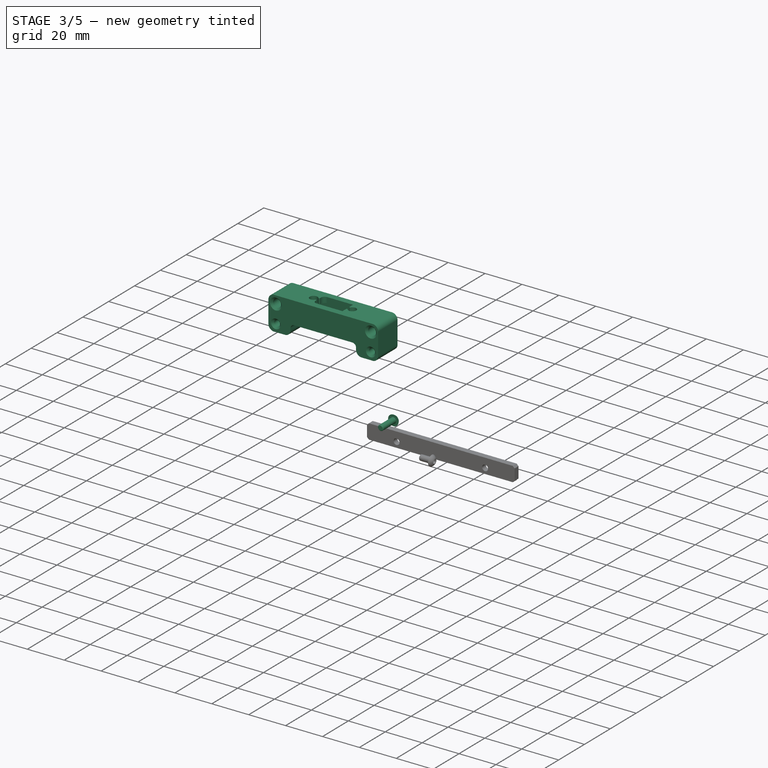
[diagram: stage 3 of 5 — iso view after this stage's code; geometry added in this stage tinted green]
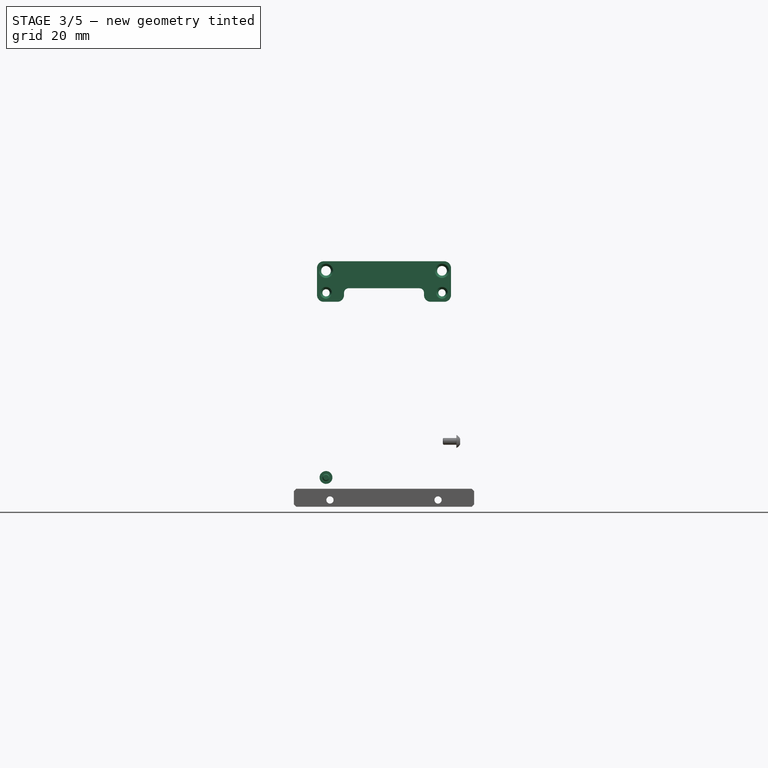
[diagram: stage 3 of 5 — front view after this stage's code; geometry added in this stage tinted green]
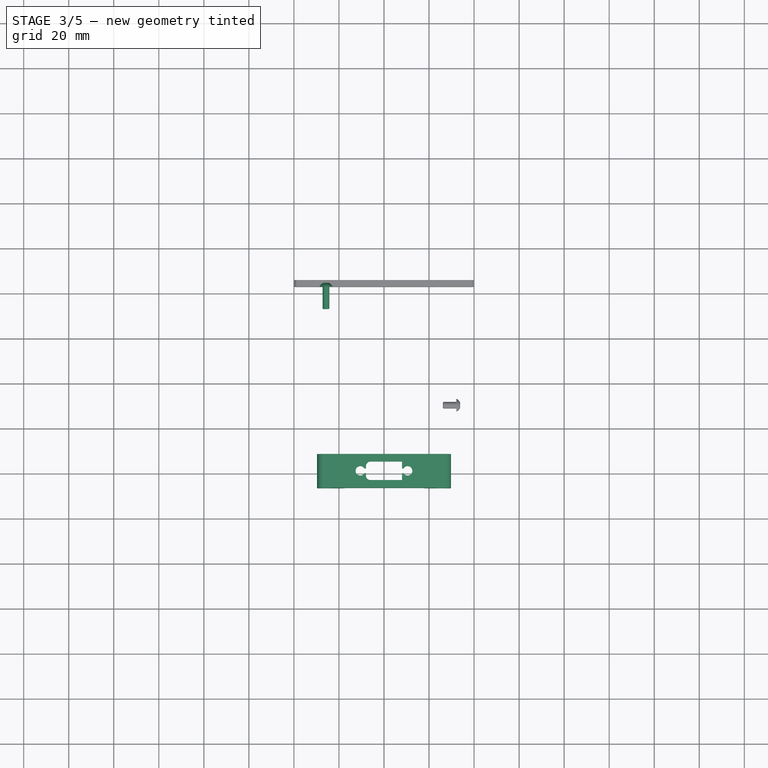
[diagram: stage 3 of 5 — top view after this stage's code; geometry added in this stage tinted green]
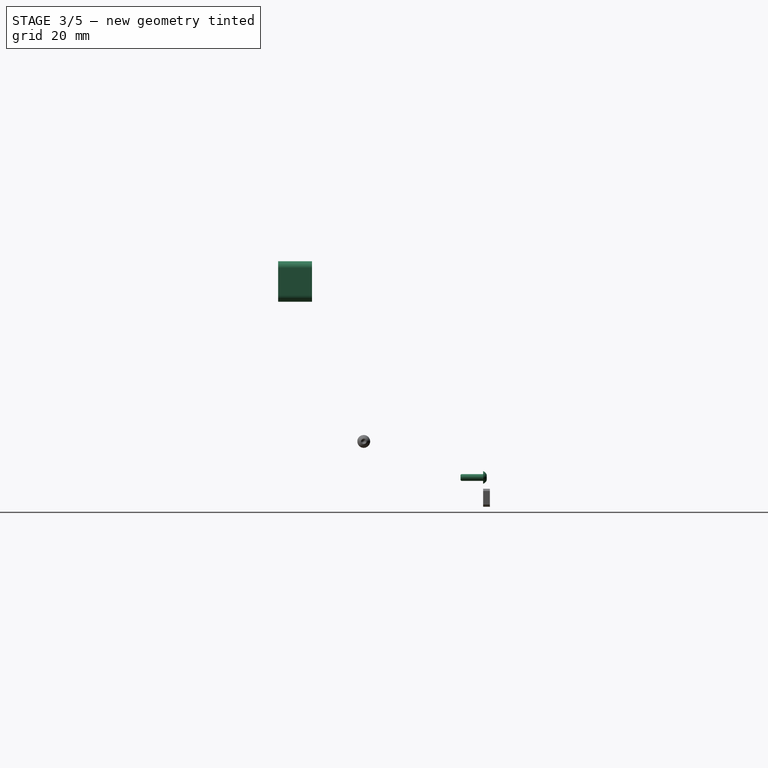
[diagram: stage 3 of 5 — right view after this stage's code; geometry added in this stage tinted green]
FEATURE [Part::FeaturePython] Screw007  label="M3x10-Screw014"  # Fasteners workbench fastener (typed FeaturePython)
  Placement = pos=(-25.75,3,15) rot=(-1,0,0;1.5708rad)
  TreeRank = 42
  baseObject = -> Body [Edge39]
  diameter = 1
  invert = true
  length = 2
  lengthCustom = 10
  matchOuter = false
  offset = 0
  thread = false
  type = 40
FEATURE [PartDesign::SubShapeBinder] Binder001  label="Binder001(Pad004)"
  BindCopyOnChange = 0
  BindMode = 0
  ClaimChildren = false
  Context = -> <external ../robot_holonome_V3.00.FCStd>#Part [Link013.Part002.Body007.Binder001.]
  EdgeTolerance = 1e-06
  FillStyle = 0
  Fuse = false
  MakeFace = true
  MergeEdges = true
  OffsetFill = false
  OffsetIntersection = false
  OffsetJoinType = 0
  OffsetOpenResult = false
  Outline = false
  PartialLoad = false
  Relative = true
  SplitEdges = false
  Support = -> [Body006[Pad004.Face18]]
  TightBound = false
  TreeRank = 88
  _Version = 8
FEATURE [Sketcher::SketchObject] Sketch015
  ArcFitTolerance = 0
  AttachmentSupport = -> [Binder001]
  ExternalBSplineMaxDegree = 0
  ExternalBSplineTolerance = 0
  ExternalGeometry = -> [Binder001]
  FullyConstrained = true
  InternalTolerance = 1e-06
  MakeInternals = false
  MapMode = 5
  Placement = pos=(1.23069e-05,-73,-3.27e-14) rot=(1,0,0;1.5708rad)
  Support = -> [Binder001]
  TreeRank = 89
  sketch-geometry (12):
    g0: Circle CenterX=-25.75 CenterY=106.751 CenterZ=0 NormalX=0 NormalY=0 NormalZ=1 AngleXU=0 Radius=2.15
    g1: Circle CenterX=-25.75 CenterY=97 CenterZ=0 NormalX=0 NormalY=0 NormalZ=1 AngleXU=0 Radius=1.6
    g2: Circle CenterX=25.75 CenterY=97 CenterZ=0 NormalX=0 NormalY=0 NormalZ=1 AngleXU=0 Radius=1.6
    g3: Circle CenterX=25.75 CenterY=106.751 CenterZ=0 NormalX=0 NormalY=0 NormalZ=1 AngleXU=0 Radius=2.15
    g4: LineSegment StartX=-29.75 StartY=93 StartZ=0 EndX=-29.75 EndY=111 EndZ=0
    g5: LineSegment StartX=-29.75 StartY=111 StartZ=0 EndX=29.75 EndY=111 EndZ=0
    g6: LineSegment StartX=29.75 StartY=111 StartZ=0 EndX=29.75 EndY=93 EndZ=0
    g7: LineSegment StartX=29.75 StartY=93 StartZ=0 EndX=17.75 EndY=93 EndZ=0
    g8: LineSegment StartX=17.75 StartY=93 StartZ=0 EndX=17.75 EndY=99 EndZ=0
    g9: LineSegment StartX=17.75 StartY=99 StartZ=0 EndX=-17.75 EndY=99 EndZ=0
    g10: LineSegment StartX=-17.75 StartY=99 StartZ=0 EndX=-17.75 EndY=93 EndZ=0
    g11: LineSegment StartX=-17.75 StartY=93 StartZ=0 EndX=-29.75 EndY=93 EndZ=0
  constraints (31):
    c: Coincident(g0,g-3)
    c: Coincident(g1,g-4)
    c: Coincident(g2,g-5)
    c: Coincident(g3,g-6)
    c: Equal(g3,g0)
    c: Diameter(g3) = 4.3
    c: Equal(g1,g2)
    c: Diameter(g1) = 3.2
    c: PointOnObject(g4,g-7)
    c: Vertical(g4)
    c: Coincident(g4,g5)
    c: Horizontal(g5)
    c: Coincident(g5,g6)
    c: PointOnObject(g6,g-9)
    c: Vertical(g6)
    c: Coincident(g6,g7)
    c: Horizontal(g7)
    c: Coincident(g7,g8)
    c: Vertical(g8)
    c: Coincident(g8,g9)
    c: Horizontal(g9)
    c: Coincident(g9,g10)
    c: Vertical(g10)
    c: Coincident(g10,g11)
    c: Coincident(g11,g4)
    c: Horizontal(g11)
    c: Symmetric(g10,g7,g-2)
    c: PointOnObject(g-8,g5)
    c: DistanceX(g11,g11) = 12
    c: DistanceY(g9,g4) = 12
    c: DistanceY(g10,g10) = 6
FEATURE [PartDesign::Pad] Pad005
  AddSubType = 0
  AlongSketchNormal = false
  AutoTaperInnerAngle = false
  CheckUpToFaceLimits = true
  ClaimChildren = false
  Direction = (1.68587e-07,-1,-3e-16)
  Fit = 0
  FitJoin = 0
  InnerFit = 0
  InnerFitJoin = 0
  Length = 15
  Length2 = 100
  Linearize = true
  NewSolid = false
  Profile = -> Sketch015
  Refine = true
  Suppress = false
  TaperInnerAngle = 0
  TaperInnerAngleRev = 0
  TreeRank = 90
  Type = 0
  _ProfileBasedVersion = 1
FEATURE [PartDesign::Fillet] Fillet003
  AddSubType = 0
  Base = -> Pad005 [Edge2,Edge5,Edge1,Edge20,Edge11,Edge8]
  BaseFeature = -> Pad005
  NewSolid = false
  Radius = 3
  Refine = true
  SupportTransform = false
  Suppress = false
  TreeRank = 91
FEATURE [PartDesign::Fillet] Fillet004
  AddSubType = 0
  Base = -> Fillet003 [Edge45,Edge47]
  BaseFeature = -> Fillet003
  NewSolid = false
  Radius = 2
  Refine = true
  SupportTransform = false
  Suppress = false
  TreeRank = 92
FEATURE [PartDesign::Chamfer] Chamfer007
  AddSubType = 0
  Angle = 45
  Base = -> Fillet004 [Edge17,Edge19,Edge20,Edge18,Edge58,Edge54,Edge56,Edge60]
  BaseFeature = -> Fillet004
  ChamferType = 0
  FlipDirection = false
  NewSolid = false
  Refine = true
  Size = 1
  Size2 = 1
  SupportTransform = false
  Suppress = false
  TreeRank = 93
FEATURE [Sketcher::SketchObject] Sketch016
  ArcFitTolerance = 0
  AttachmentSupport = -> [Chamfer007]
  ExternalBSplineMaxDegree = 0
  ExternalBSplineTolerance = 0
  ExternalGeometry = -> [Chamfer007]
  FullyConstrained = true
  InternalTolerance = 1e-06
  MakeInternals = false
  MapMode = 5
  Placement = pos=(0,-3.7e-14,111) rot=(0,0,1;0rad)
  Support = -> [Chamfer007]
  TreeRank = 94
  sketch-geometry (9):
    g0: LineSegment StartX=-8 StartY=-76.4 StartZ=0 EndX=-8 EndY=-84.6 EndZ=0
    g1: LineSegment StartX=-8 StartY=-84.6 StartZ=0 EndX=8 EndY=-84.6 EndZ=0
    g2: LineSegment StartX=8 StartY=-84.6 StartZ=0 EndX=8 EndY=-76.4 EndZ=0
    g3: LineSegment StartX=8 StartY=-76.4 StartZ=0 EndX=-8 EndY=-76.4 EndZ=0
    g4: GeomPoint [constr] X=1.20316e-11 Y=-80.5 Z=0
    g5: Circle CenterX=-10.5 CenterY=-80.5 CenterZ=0 NormalX=0 NormalY=0 NormalZ=1 AngleXU=0 Radius=2.1
    g6: Circle CenterX=10.5 CenterY=-80.5 CenterZ=0 NormalX=0 NormalY=0 NormalZ=1 AngleXU=0 Radius=2.1
    g7: GeomPoint [constr] X=4.07742e-11 Y=-88 Z=0
    g8: GeomPoint [constr] X=-3.4147e-12 Y=-73 Z=0
  constraints (21):
    c: Coincident(g0,g1)
    c: Coincident(g1,g2)
    c: Coincident(g2,g3)
    c: Coincident(g3,g0)
    c: Horizontal(g1)
    c: Horizontal(g3)
    c: Vertical(g0)
    c: Vertical(g2)
    c: Symmetric(g1,g0,g4)
    c: PointOnObject(g4,g-2)
    c: DistanceX(g3,g3) = 16
    c: PointOnObject(g7,g-4)
    c: PointOnObject(g8,g-3)
    c: PointOnObject(g8,g-2)
    c: Symmetric(g7,g8,g4)
    c: DistanceY(g2,g2) = 8.2
    c: Symmetric(g5,g6,g4)
    c: DistanceX(g5,g6) = 21
    c: Equal(g6,g5)
    c: Diameter(g6) = 4.2
    c: Horizontal(g6,g5)
FEATURE [PartDesign::Pocket] Pocket008
  AddSubType = 1
  AutoTaperInnerAngle = false
  BaseFeature = -> Chamfer007
  CheckUpToFaceLimits = true
  ClaimChildren = false
  Fit = 0
  FitJoin = 0
  InnerFit = 0
  InnerFitJoin = 0
  Length = 5
  Length2 = 100
  Linearize = true
  NewSolid = false
  Profile = -> Sketch016
  Refine = true
  Suppress = false
  TaperInnerAngle = 0
  TaperInnerAngleRev = 0
  TreeRank = 95
  Type = 1
  _ProfileBasedVersion = 1
  _Version = 1
FEATURE [Sketcher::SketchObject] Sketch017
  ArcFitTolerance = 0
  AttachmentSupport = -> [Pocket008]
  ExternalBSplineMaxDegree = 0
  ExternalBSplineTolerance = 0
  ExternalGeometry = -> [Pocket008]
  FullyConstrained = true
  InternalTolerance = 1e-06
  MakeInternals = false
  MapMode = 5
  Placement = pos=(0,-3.3e-14,99) rot=(1,0,0;3.14159rad)
  Support = -> [Pocket008]
  TreeRank = 96
  sketch-geometry (4):
    g0: ArcOfCircle CenterX=-10.5 CenterY=80.5 CenterZ=0 NormalX=0 NormalY=0 NormalZ=1 AngleXU=0 Radius=4.6 StartAngle=1.5708 EndAngle=4.71239
    g1: ArcOfCircle CenterX=10.5 CenterY=80.5 CenterZ=0 NormalX=0 NormalY=0 NormalZ=1 AngleXU=0 Radius=4.6 StartAngle=4.71239 EndAngle=7.85398
    g2: LineSegment StartX=-10.5 StartY=75.9 StartZ=0 EndX=10.5 EndY=75.9 EndZ=0
    g3: LineSegment StartX=10.5 StartY=85.1 StartZ=0 EndX=-10.5 EndY=85.1 EndZ=0
  constraints (8):
    c: Tangent(g0,g2) = -1.5708
    c: Tangent(g2,g1) = -1.5708
    c: Tangent(g1,g3) = -1.5708
    c: Tangent(g3,g0) = -1.5708
    c: Equal(g0,g1)
    c: Coincident(g0,g-4)
    c: Coincident(g1,g-3)
    c: DistanceY(g-5,g1) = 0.5
FEATURE [PartDesign::Pocket] Pocket009
  AddSubType = 1
  AutoTaperInnerAngle = false
  BaseFeature = -> Pocket008
  CheckUpToFaceLimits = true
  ClaimChildren = false
  Fit = 0
  FitJoin = 0
  InnerFit = 0
  InnerFitJoin = 0
  Length = 9
  Length2 = 100
  Linearize = true
  NewSolid = false
  Profile = -> Sketch017
  Refine = true
  Suppress = false
  TaperInnerAngle = 0
  TaperInnerAngleRev = 0
  TreeRank = 97
  Type = 0
  _ProfileBasedVersion = 1
  _Version = 1
FEATURE [PartDesign::Fillet] Fillet005
  AddSubType = 0
  Base = -> Pocket009 [Edge91,Edge89]
  BaseFeature = -> Pocket009
  NewSolid = false
  Radius = 2
  Refine = true
  SupportTransform = false
  Suppress = false
  TreeRank = 98
FEATURE [Sketcher::SketchObject] Sketch018
  ArcFitTolerance = 0
  AttachmentSupport = -> [Fillet005]
  ExternalBSplineMaxDegree = 0
  ExternalBSplineTolerance = 0
  ExternalGeometry = -> [Fillet005]
  FullyConstrained = true
  InternalTolerance = 1e-06
  MakeInternals = false
  MapMode = 5
  Placement = pos=(0,-3.7e-14,111) rot=(0,0,1;0rad)
  Support = -> [Fillet005]
  TreeRank = 99
  sketch-geometry (4):
    g0: ArcOfCircle CenterX=-10.5 CenterY=-80.5 CenterZ=0 NormalX=0 NormalY=0 NormalZ=1 AngleXU=0 Radius=1 StartAngle=1.5708 EndAngle=4.71239
    g1: ArcOfCircle CenterX=10.5 CenterY=-80.5 CenterZ=0 NormalX=0 NormalY=0 NormalZ=1 AngleXU=0 Radius=1 StartAngle=4.71239 EndAngle=7.85398
    g2: LineSegment StartX=-10.5 StartY=-81.5 StartZ=0 EndX=10.5 EndY=-81.5 EndZ=0
    g3: LineSegment StartX=10.5 StartY=-79.5 StartZ=0 EndX=-10.5 EndY=-79.5 EndZ=0
  constraints (8):
    c: Tangent(g0,g2) = -1.5708
    c: Tangent(g2,g1) = -1.5708
    c: Tangent(g1,g3) = -1.5708
    c: Tangent(g3,g0) = -1.5708
    c: Equal(g0,g1)
    c: Coincident(g0,g-3)
    c: Coincident(g1,g-4)
    c: DistanceY(g1,g1) = 2
FEATURE [PartDesign::Pocket] Pocket010
  AddSubType = 1
  AutoTaperInnerAngle = false
  BaseFeature = -> Fillet005
  CheckUpToFaceLimits = true
  ClaimChildren = false
  Fit = 0
  FitJoin = 0
  InnerFit = 0
  InnerFitJoin = 0
  Length = 5
  Length2 = 100
  Linearize = true
  NewSolid = false
  Profile = -> Sketch018
  Refine = true
  Suppress = false
  TaperInnerAngle = 0
  TaperInnerAngleRev = 0
  TreeRank = 100
  Type = 1
  _ProfileBasedVersion = 1
  _Version = 1
FEATURE [PartDesign::Fillet] Fillet006
  AddSubType = 0
  Base = -> Pocket010 [Edge60,Edge63,Edge67,Edge65,Edge81,Edge79,Edge77,Edge75]
  BaseFeature = -> Pocket010
  NewSolid = false
  Radius = 0.3
  Refine = true
  SupportTransform = false
  Suppress = false
  TreeRank = 101
FEATURE [PartDesign::Body] Body007  label="BlocXT60"
  AutoGroupSolids = false
  ClaimAllChildren = false
  ExportMode = 0
  Group = -> [Binder001,Sketch015,Pad005,Fillet003,Fillet004,Chamfer007,Sketch016,Pocket008,Sketch017,Pocket009,Fillet005,Sketch018,Pocket010,Fillet006]
  Origin = -> Origin010
  SingleSolid = true
  Tip = -> Fillet006
  TreeRank = 87
  _ExportChildren = -> [Binder001,Pad005,Fillet003,Fillet004,Chamfer007,Pocket008,Pocket009,Fillet005,Pocket010,Fillet006]
  _GroupVersion = 1
FEATURE [Sketcher::SketchObject] Sketch019
  ArcFitTolerance = 0
  AttachmentSupport = -> [Pad004]
  ExternalBSplineMaxDegree = 0
  ExternalBSplineTolerance = 0
  ExternalGeometry = -> [Pad004]
  FullyConstrained = true
  InternalTolerance = 1e-06
  MakeInternals = false
  MapMode = 5
  Placement = pos=(1.23069e-05,-73,-3.27e-14) rot=(1,0,0;1.5708rad)
  Support = -> [Pad004]
  TreeRank = 102
  sketch-geometry (8):
    g0: ArcOfCircle CenterX=-7.5 CenterY=86 CenterZ=0 NormalX=0 NormalY=0 NormalZ=1 AngleXU=0 Radius=1.5 StartAngle=-3.0287e-12 EndAngle=3.14159
    g1: ArcOfCircle CenterX=-7.5 CenterY=76 CenterZ=0 NormalX=0 NormalY=0 NormalZ=1 AngleXU=0 Radius=1.5 StartAngle=3.14159 EndAngle=6.28319
    g2: LineSegment StartX=-9 StartY=86 StartZ=0 EndX=-9 EndY=76 EndZ=0
    g3: LineSegment StartX=-6 StartY=76 StartZ=0 EndX=-6 EndY=86 EndZ=0
    g4: ArcOfCircle CenterX=7.5 CenterY=86 CenterZ=0 NormalX=0 NormalY=0 NormalZ=1 AngleXU=0 Radius=1.5 StartAngle=-3.7863e-12 EndAngle=3.14159
    g5: ArcOfCircle CenterX=7.5 CenterY=76 CenterZ=0 NormalX=0 NormalY=0 NormalZ=1 AngleXU=0 Radius=1.5 StartAngle=3.14159 EndAngle=6.28319
    g6: LineSegment StartX=6 StartY=86 StartZ=0 EndX=6 EndY=76 EndZ=0
    g7: LineSegment StartX=9 StartY=76 StartZ=0 EndX=9 EndY=86 EndZ=0
  constraints (18):
    c: Tangent(g0,g2) = -1.5708
    c: Tangent(g2,g1) = -1.5708
    c: Tangent(g1,g3) = -1.5708
    c: Tangent(g3,g0) = -1.5708
    c: Equal(g0,g1)
    c: Tangent(g4,g6) = -1.5708
    c: Tangent(g6,g5) = -1.5708
    c: Tangent(g5,g7) = -1.5708
    c: Tangent(g7,g4) = -1.5708
    c: Equal(g4,g5)
    c: Symmetric(g4,g0,g-2)
    c: Symmetric(g5,g1,g-2)
    c: Equal(g5,g1)
    c: Vertical(g3)
    c: Radius(g4) = 1.5
    c: DistanceY(g2,g2) = 10
    c: DistanceX(g0,g4) = 12
    c: DistanceY(g0,g-3) = 25
FEATURE [PartDesign::Pocket] Pocket011
  AddSubType = 1
  AutoTaperInnerAngle = false
  BaseFeature = -> Pad004
  CheckUpToFaceLimits = true
  ClaimChildren = false
  Fit = 0
  FitJoin = 0
  InnerFit = 0
  InnerFitJoin = 0
  Length = 5
  Length2 = 100
  Linearize = true
  NewSolid = false
  Profile = -> Sketch019
  Refine = true
  Suppress = false
  TaperInnerAngle = 0
  TaperInnerAngleRev = 0
  TreeRank = 103
  Type = 1
  _ProfileBasedVersion = 1
  _Version = 1
FEATURE [PartDesign::LinearPattern] LinearPattern
  AddSubType = 0
  BaseFeature = -> Pocket011
  CopyShape = false
  Direction = -> Sketch019 [V_Axis]
  Length = 50
  NewSolid = false
  Occurrences = 2
  OriginalSubs = -> [Pocket011]
  Originals = -> [Pocket011]
  ParallelTransform = true
  Refine = true
  Reversed = true
  SubTransform = true
  Suppress = false
  TreeRank = 104
  _Version = 3
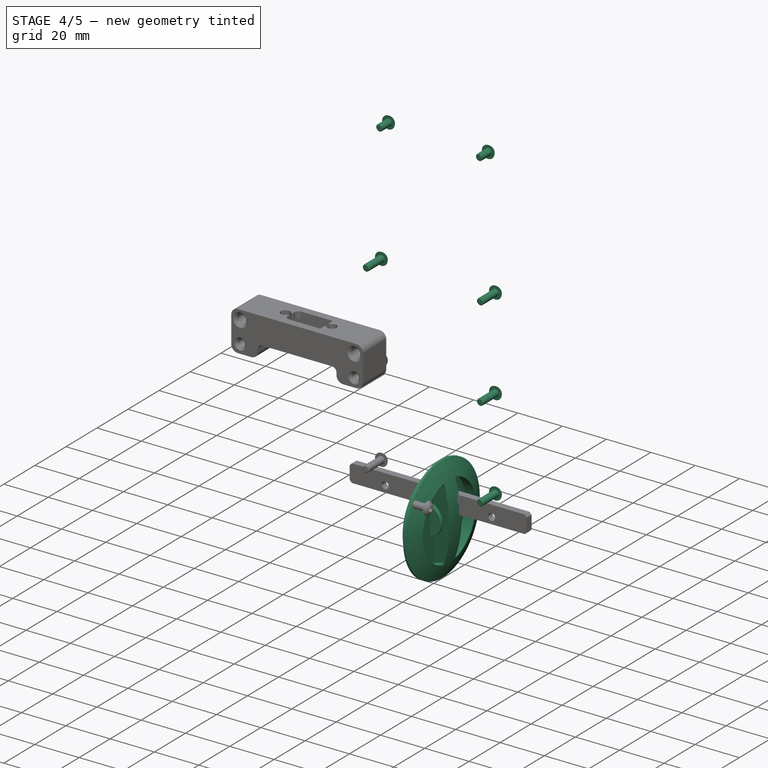
[diagram: stage 4 of 5 — iso view after this stage's code; geometry added in this stage tinted green]
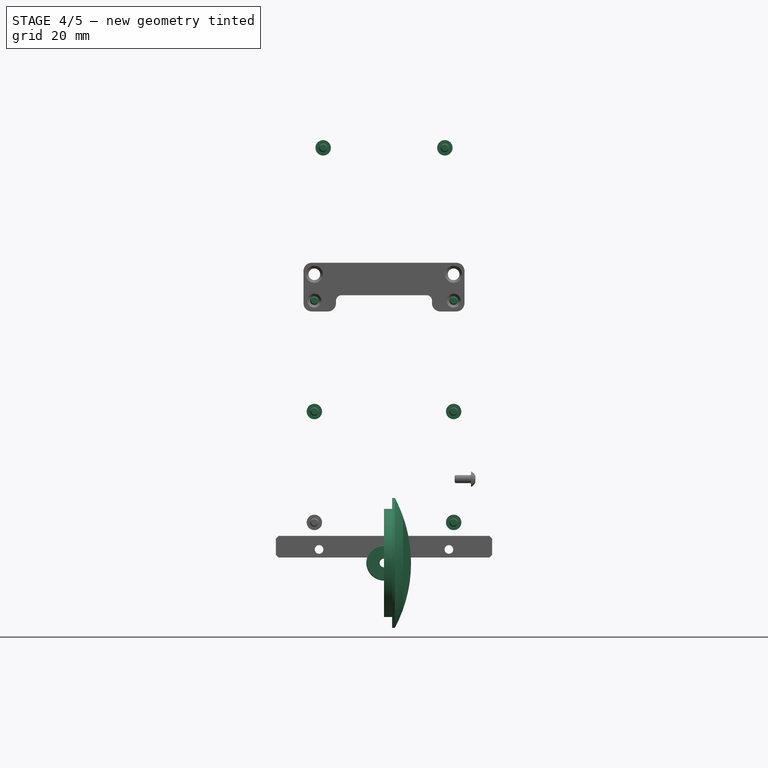
[diagram: stage 4 of 5 — front view after this stage's code; geometry added in this stage tinted green]
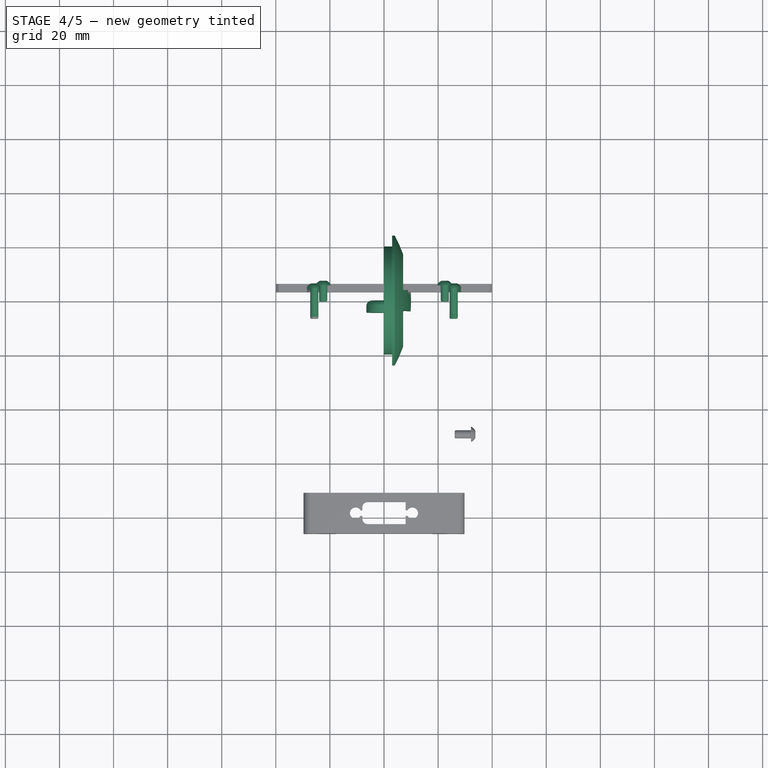
[diagram: stage 4 of 5 — top view after this stage's code; geometry added in this stage tinted green]
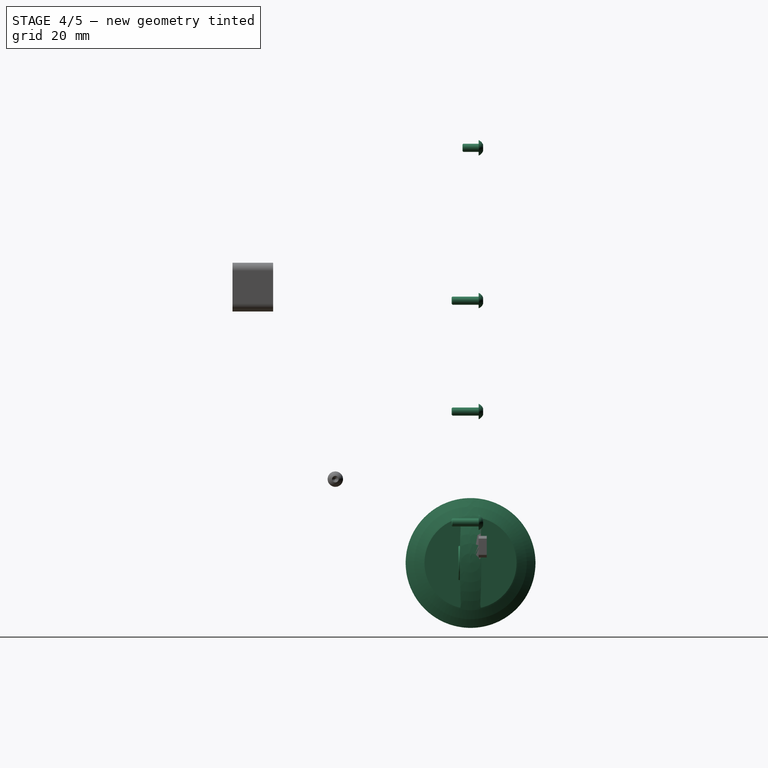
[diagram: stage 4 of 5 — right view after this stage's code; geometry added in this stage tinted green]
FEATURE [Sketcher::SketchObject] Sketch009
  ArcFitTolerance = 0
  AttachmentSupport = -> [XZ_Plane003]
  ExternalBSplineMaxDegree = 0
  ExternalBSplineTolerance = 0
  FullyConstrained = true
  InternalTolerance = 1e-06
  MakeInternals = false
  MapMode = 5
  Placement = pos=(0,0,0) rot=(1,0,0;1.5708rad)
  Support = -> [XZ_Plane003]
  TreeRank = 0
  sketch-geometry (6):
    g0: LineSegment StartX=0 StartY=0 StartZ=0 EndX=0 EndY=20 EndZ=0
    g1: LineSegment StartX=0 StartY=20 StartZ=0 EndX=3 EndY=20 EndZ=0
    g2: LineSegment StartX=3 StartY=20 StartZ=0 EndX=3 EndY=24 EndZ=0
    g3: LineSegment StartX=3 StartY=24 StartZ=0 EndX=4 EndY=24 EndZ=0
    g4: ArcOfCircle CenterX=-41 CenterY=0 CenterZ=0 NormalX=0 NormalY=0 NormalZ=1 AngleXU=0 Radius=51 StartAngle=0 EndAngle=0.489957
    g5: LineSegment StartX=10 StartY=0 StartZ=0 EndX=0 EndY=0 EndZ=0
  constraints (18):
    c: Coincident(g0,g-1)
    c: PointOnObject(g0,g-2)
    c: Coincident(g0,g1)
    c: Horizontal(g1)
    c: Coincident(g1,g2)
    c: Vertical(g2)
    c: Coincident(g2,g3)
    c: Horizontal(g3)
    c: PointOnObject(g4,g-1)
    c: Coincident(g4,g3)
    c: PointOnObject(g4,g-1)
    c: Coincident(g5,g4)
    c: Coincident(g5,g0)
    c: DistanceX(g1,g1) = 3
    c: DistanceY(g0,g0) = 20
    c: DistanceY(g2) = 24
    c: DistanceX(g3,g3) = 1
    c: DistanceX(g5,g5) = 10
FEATURE [PartDesign::Revolution] Revolution
  AddSubType = 0
  Angle = 360
  Axis = (1,0,0)
  Base = (0,0,0)
  ClaimChildren = false
  Fit = 0
  FitJoin = 0
  InnerFit = 0
  InnerFitJoin = 0
  NewSolid = false
  Placement = pos=(0,0,0) rot=(1,0,0;1.5708rad)
  Profile = -> Sketch009
  ReferenceAxis = -> X_Axis003
  Refine = true
  Reversed = true
  Suppress = false
  TreeRank = 0
  _ProfileBasedVersion = 1
FEATURE [Sketcher::SketchObject] Sketch010
  ArcFitTolerance = 0
  AttachmentOffset = pos=(0,0,1.5) rot=(0,0,1;0rad)
  AttachmentSupport = -> [YZ_Plane003]
  ExternalBSplineMaxDegree = 0
  ExternalBSplineTolerance = 0
  FullyConstrained = true
  InternalTolerance = 1e-06
  MakeInternals = false
  MapMode = 5
  Placement = pos=(1.5,-3e-16,3e-16) rot=(0.57735,0.57735,0.57735;2.0944rad)
  Support = -> [YZ_Plane003]
  TreeRank = 0
  sketch-geometry (2):
    g0: ArcOfCircle CenterX=0 CenterY=0 CenterZ=0 NormalX=0 NormalY=0 NormalZ=1 AngleXU=0 Radius=18 StartAngle=1.71014 EndAngle=4.57305
    g1: LineSegment StartX=-2.5 StartY=17.8255 StartZ=0 EndX=-2.5 EndY=-17.8255 EndZ=0
  constraints (6):
    c: Coincident(g0,g-1)
    c: Coincident(g1,g0)
    c: Coincident(g1,g0)
    c: Vertical(g1)
    c: DistanceX(g0,g0) = 2.5
    c: Radius(g0) = 18
FEATURE [PartDesign::Pocket] Pocket006
  AddSubType = 1
  AutoTaperInnerAngle = false
  BaseFeature = -> Revolution
  CheckUpToFaceLimits = true
  ClaimChildren = false
  Fit = 0
  FitJoin = 0
  InnerFit = 0
  InnerFitJoin = 0
  Length = 9
  Length2 = 100
  Linearize = true
  NewSolid = false
  Placement = pos=(0,0,0) rot=(1,0,0;1.5708rad)
  Profile = -> Sketch010
  Refine = true
  Reversed = true
  Suppress = false
  TaperAngle = -10
  TaperInnerAngle = 0
  TaperInnerAngleRev = 0
  TreeRank = 0
  Type = 0
  _ProfileBasedVersion = 1
  _Version = 1
FEATURE [PartDesign::Mirrored] Mirrored
  AddSubType = 0
  BaseFeature = -> Pocket006
  CopyShape = false
  MirrorPlane = -> XZ_Plane003
  NewSolid = false
  OriginalSubs = -> [Pocket006]
  Originals = -> [Pocket006]
  ParallelTransform = true
  Placement = pos=(0,0,0) rot=(1,0,0;1.5708rad)
  Refine = true
  SubTransform = true
  Suppress = false
  TreeRank = 0
  _Version = 3
FEATURE [PartDesign::Body] Body  label="CarterBatterie"
  AutoGroupSolids = false
  ClaimAllChildren = false
  ExportMode = 0
  Group = -> [Sketch,Pad,Sketch006,Pocket003,Chamfer001,Sketch007,Pocket004,Sketch008,Pocket005,Chamfer005,Sketch011,Pocket007]
  Origin = -> Origin
  Placement = pos=(0,0,0) rot=(0,0,1;1.5708rad)
  SingleSolid = true
  Tip = -> Pocket007
  TreeRank = 0
  _ExportChildren = -> [Pad,Pocket003,Chamfer001,Pocket004,Pocket005,Chamfer005,Pocket007]
  _GroupVersion = 1
FEATURE [Sketcher::SketchObject] Sketch012
  ArcFitTolerance = 0
  AttachmentSupport = -> [YZ_Plane004]
  ExternalBSplineMaxDegree = 0
  ExternalBSplineTolerance = 0
  FullyConstrained = true
  InternalTolerance = 1e-06
  MakeInternals = false
  MapMode = 5
  Placement = pos=(0,0,0) rot=(0.57735,0.57735,0.57735;2.0944rad)
  Support = -> [YZ_Plane004]
  TreeRank = 13
  sketch-geometry (5):
    g0: LineSegment StartX=-2 StartY=6.5 StartZ=0 EndX=-4.5 EndY=6.5 EndZ=0
    g1: LineSegment StartX=-4.5 StartY=6.5 StartZ=0 EndX=-4.5 EndY=1.6 EndZ=0
    g2: LineSegment StartX=-4.5 StartY=1.6 StartZ=0 EndX=-2.5082e-12 EndY=1.6 EndZ=0
    g3: LineSegment StartX=-2.5082e-12 StartY=1.6 StartZ=0 EndX=-2.5082e-12 EndY=4.5 EndZ=0
    g4: ArcOfCircle CenterX=-2 CenterY=4.5 CenterZ=0 NormalX=0 NormalY=0 NormalZ=1 AngleXU=0 Radius=2 StartAngle=-1.3776e-12 EndAngle=1.5708
  constraints (14):
    c: Coincident(g0,g1)
    c: Coincident(g1,g2)
    c: Coincident(g2,g3)
    c: Horizontal(g0)
    c: Horizontal(g2)
    c: Vertical(g1)
    c: Vertical(g3)
    c: DistanceY(g0) = 6.5
    c: DistanceY(g1) = 1.6
    c: Tangent(g0,g4) = -1.5708
    c: Tangent(g3,g4) = -1.5708
    c: Radius(g4) = 2
    c: PointOnObject(g3,g-2)
    c: DistanceX(g2,g2) = 4.5
FEATURE [PartDesign::Revolution] Revolution001
  AddSubType = 0
  Angle = 360
  Axis = (1e-16,1,-1e-16)
  Base = (0,0,0)
  ClaimChildren = false
  Fit = 0
  FitJoin = 0
  InnerFit = 0
  InnerFitJoin = 0
  Linearize = true
  NewSolid = false
  Placement = pos=(0,0,0) rot=(0.57735,0.57735,0.57735;2.0944rad)
  Profile = -> Sketch012
  ReferenceAxis = -> Y_Axis004
  Refine = true
  Suppress = false
  TreeRank = 14
  _ProfileBasedVersion = 1
FEATURE [PartDesign::Chamfer] Chamfer006
  AddSubType = 0
  Angle = 45
  Base = -> Revolution001 [Edge2]
  BaseFeature = -> Revolution001
  ChamferType = 0
  FlipDirection = false
  NewSolid = false
  Placement = pos=(0,0,0) rot=(0.57735,0.57735,0.57735;2.0944rad)
  Refine = true
  Size = 0.2
  Size2 = 1
  SupportTransform = false
  Suppress = false
  TreeRank = 25
FEATURE [PartDesign::Body] Body004  label="Magnet"
  AutoGroupSolids = false
  ClaimAllChildren = false
  ExportMode = 0
  Group = -> [Sketch012,Revolution001,Chamfer006]
  Origin = -> Origin005
  Placement = pos=(22.5,3.79322e-06,153.5) rot=(0,0,1;0rad)
  SingleSolid = true
  Tip = -> Chamfer006
  TreeRank = 12
  _ExportChildren = -> [Revolution001,Chamfer006]
  _GroupVersion = 1
FEATURE [App::Link] Link  label="Link(Magnet)"
  AutoLinkLabel = true
  AutoPlacement = true
  LinkPlacement = pos=(-22.5,-3.79321e-06,153.5) rot=(0,0,1;0rad)
  LinkedObject = -> Body004
  Placement = pos=(-22.5,-3.79321e-06,153.5) rot=(0,0,1;0rad)
  SyncGroupVisibility = false
  TreeRank = 26
  _LinkVersion = 1
FEATURE [Part::FeaturePython] Screw  label="M3x10-Screw"  # Fasteners workbench fastener (typed FeaturePython)
  Placement = pos=(25.75,3,15) rot=(-1,0,0;1.5708rad)
  TreeRank = 35
  baseObject = -> Body [Edge49]
  diameter = 1
  invert = true
  length = 2
  lengthCustom = 10
  matchOuter = false
  offset = 0
  thread = false
  type = 40
FEATURE [Part::FeaturePython] Screw001  label="M3x10-Screw008"  # Fasteners workbench fastener (typed FeaturePython)
  Placement = pos=(25.75,3,56) rot=(-1,0,0;1.5708rad)
  TreeRank = 36
  baseObject = -> Body [Edge51]
  diameter = 1
  invert = true
  length = 2
  lengthCustom = 10
  matchOuter = false
  offset = 0
  thread = false
  type = 40
FEATURE [Part::FeaturePython] Screw002  label="M3x10-Screw009"  # Fasteners workbench fastener (typed FeaturePython)
  Placement = pos=(25.75,3,97) rot=(-1,0,0;1.5708rad)
  TreeRank = 37
  baseObject = -> Body [Edge55]
  diameter = 1
  invert = true
  length = 2
  lengthCustom = 10
  matchOuter = false
  offset = 0
  thread = false
  type = 40
FEATURE [Part::FeaturePython] Screw003  label="M3x6-Screw"  # Fasteners workbench fastener (typed FeaturePython)
  Placement = pos=(22.5,3,153.5) rot=(-1,0,0;1.5708rad)
  TreeRank = 38
  baseObject = -> Body [Edge57]
  diameter = 1
  invert = true
  length = 0
  lengthCustom = 6
  matchOuter = false
  offset = 0
  thread = false
  type = 40
FEATURE [Part::FeaturePython] Screw004  label="M3x6-Screw001"  # Fasteners workbench fastener (typed FeaturePython)
  Placement = pos=(-22.5,3,153.5) rot=(-1,0,0;1.5708rad)
  TreeRank = 39
  baseObject = -> Body [Edge45]
  diameter = 1
  invert = true
  length = 0
  lengthCustom = 6
  matchOuter = false
  offset = 0
  thread = false
  type = 40
FEATURE [Part::FeaturePython] Screw005  label="M3x10-Screw012"  # Fasteners workbench fastener (typed FeaturePython)
  Placement = pos=(-25.75,3,97) rot=(-1,0,0;1.5708rad)
  TreeRank = 40
  baseObject = -> Body [Edge43]
  diameter = 1
  invert = true
  length = 2
  lengthCustom = 10
  matchOuter = false
  offset = 0
  thread = false
  type = 40
FEATURE [Part::FeaturePython] Screw006  label="M3x10-Screw013"  # Fasteners workbench fastener (typed FeaturePython)
  Placement = pos=(-25.75,3,56) rot=(-1,0,0;1.5708rad)
  TreeRank = 41
  baseObject = -> Body [Edge41]
  diameter = 1
  invert = true
  length = 2
  lengthCustom = 10
  matchOuter = false
  offset = 0
  thread = false
  type = 40
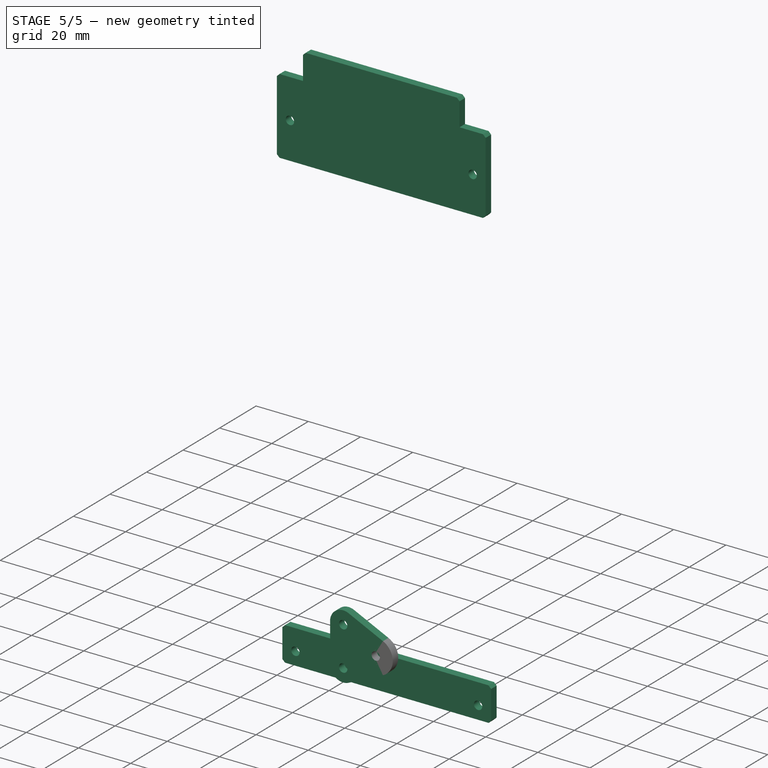
[diagram: stage 5 of 5 — iso view after this stage's code; geometry added in this stage tinted green]
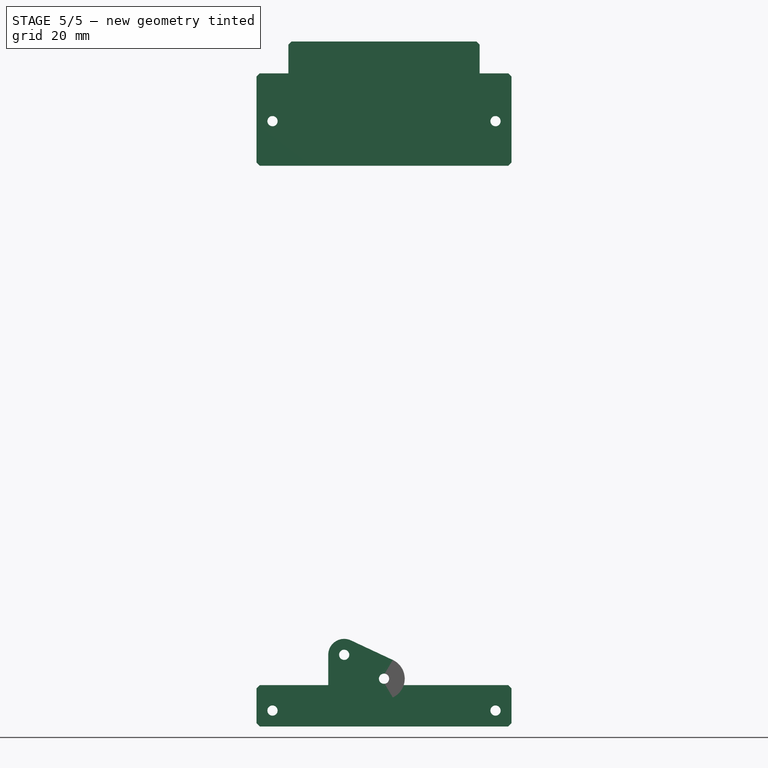
[diagram: stage 5 of 5 — front view after this stage's code; geometry added in this stage tinted green]
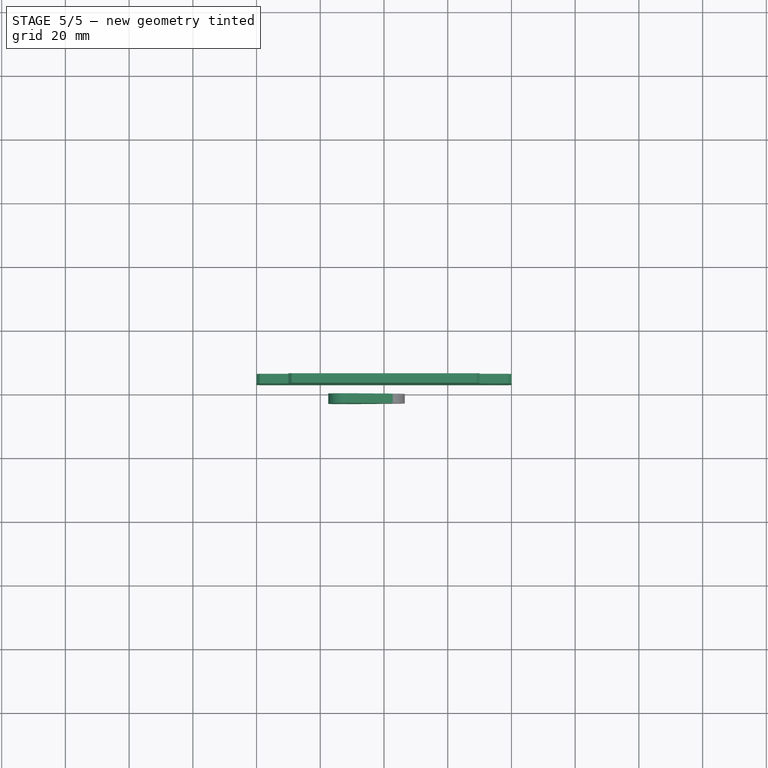
[diagram: stage 5 of 5 — top view after this stage's code; geometry added in this stage tinted green]
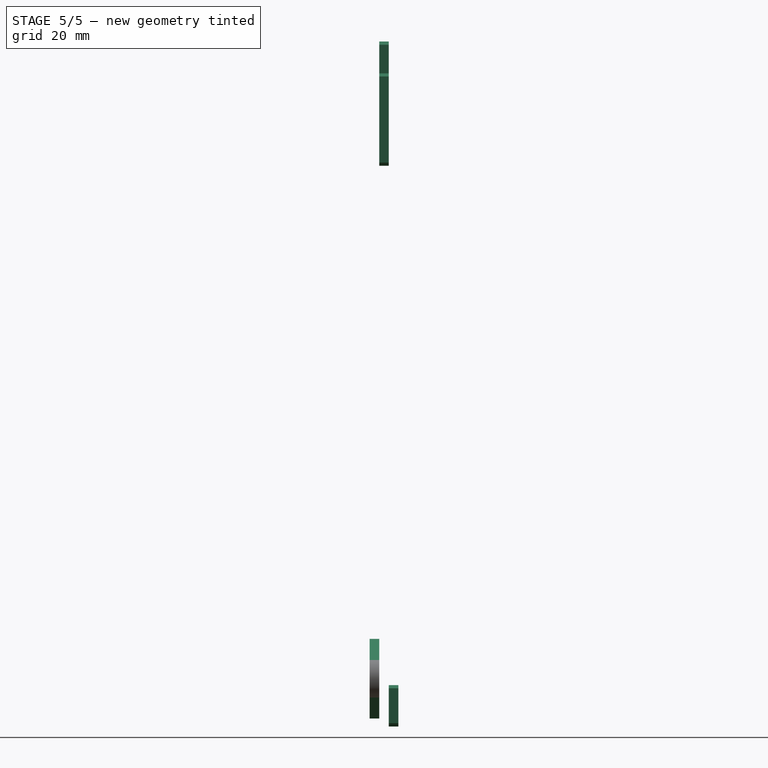
[diagram: stage 5 of 5 — right view after this stage's code; geometry added in this stage tinted green]
FEATURE [Sketcher::SketchObject] Sketch001
  ArcFitTolerance = 0
  AttachmentSupport = -> [YZ_Plane001]
  ExternalBSplineMaxDegree = 0
  ExternalBSplineTolerance = 0
  FullyConstrained = true
  InternalTolerance = 1e-06
  MakeInternals = false
  MapMode = 5
  Placement = pos=(0,0,0) rot=(0.57735,0.57735,0.57735;2.0944rad)
  Support = -> [YZ_Plane001]
  TreeRank = 0
  sketch-geometry (4):
    g0: LineSegment StartX=-30 StartY=10 StartZ=0 EndX=30 EndY=10 EndZ=0
    g1: LineSegment StartX=30 StartY=10 StartZ=0 EndX=30 EndY=-5 EndZ=0
    g2: LineSegment StartX=30 StartY=-5 StartZ=0 EndX=-30 EndY=-5 EndZ=0
    g3: LineSegment StartX=-30 StartY=-5 StartZ=0 EndX=-30 EndY=10 EndZ=0
  constraints (11):
    c: Coincident(g0,g1)
    c: Coincident(g1,g2)
    c: Coincident(g2,g3)
    c: Coincident(g3,g0)
    c: Horizontal(g0)
    c: Vertical(g1)
    c: Vertical(g3)
    c: Symmetric(g1,g2,g-2)
    c: DistanceX(g0,g0) = 60
    c: DistanceY(g0) = 10
    c: DistanceY(g1) = -5
FEATURE [PartDesign::Pad] Pad001
  AddSubType = 0
  AutoTaperInnerAngle = false
  CheckUpToFaceLimits = true
  ClaimChildren = false
  Direction = (1,1,1)
  Fit = 0
  FitJoin = 0
  InnerFit = 0
  InnerFitJoin = 0
  Length = 3
  Length2 = 100
  Linearize = true
  NewSolid = false
  Placement = pos=(0,0,0) rot=(0.57735,0.57735,0.57735;2.0944rad)
  Profile = -> Sketch001
  Refine = true
  Reversed = true
  Suppress = false
  TaperInnerAngle = 0
  TaperInnerAngleRev = 0
  TreeRank = 0
  Type = 0
  _ProfileBasedVersion = 1
FEATURE [PartDesign::Chamfer] Chamfer
  AddSubType = 0
  Angle = 45
  Base = -> Pad001 [Edge2,Edge1,Edge8,Edge5]
  BaseFeature = -> Pad001
  ChamferType = 0
  FlipDirection = false
  NewSolid = false
  Placement = pos=(0,0,0) rot=(0.57735,0.57735,0.57735;2.0944rad)
  Refine = true
  Size = 1
  Size2 = 1
  SupportTransform = false
  Suppress = false
  TreeRank = 0
FEATURE [Sketcher::SketchObject] Sketch005
  ArcFitTolerance = 0
  AttachmentSupport = -> [YZ_Plane001]
  ExternalBSplineMaxDegree = 0
  ExternalBSplineTolerance = 0
  FullyConstrained = true
  InternalTolerance = 1e-06
  MakeInternals = false
  MapMode = 5
  Placement = pos=(0,0,0) rot=(0.57735,0.57735,0.57735;2.0944rad)
  Support = -> [YZ_Plane001]
  TreeRank = 0
  sketch-geometry (2):
    g0: Circle CenterX=-24 CenterY=5 CenterZ=0 NormalX=0 NormalY=0 NormalZ=1 AngleXU=0 Radius=1.6
    g1: Circle CenterX=24 CenterY=5 CenterZ=0 NormalX=0 NormalY=0 NormalZ=1 AngleXU=0 Radius=1.6
  constraints (5):
    c: Diameter(g1) = 3.2
    c: Equal(g1,g0)
    c: Symmetric(g1,g0,g-2)
    c: DistanceY(g1) = 5
    c: DistanceX(g1) = 24
FEATURE [PartDesign::Pocket] Pocket002
  AddSubType = 1
  AutoTaperInnerAngle = false
  BaseFeature = -> Chamfer
  CheckUpToFaceLimits = true
  ClaimChildren = false
  Fit = 0
  FitJoin = 0
  InnerFit = 0
  InnerFitJoin = 0
  Length = 5
  Length2 = 100
  Linearize = true
  NewSolid = false
  Placement = pos=(0,0,0) rot=(0.57735,0.57735,0.57735;2.0944rad)
  Profile = -> Sketch005
  Refine = true
  Suppress = false
  TaperInnerAngle = 0
  TaperInnerAngleRev = 0
  TreeRank = 0
  Type = 1
  _ProfileBasedVersion = 1
  _Version = 1
FEATURE [PartDesign::Chamfer] Chamfer002
  AddSubType = 0
  Angle = 45
  Base = -> Mirrored [Edge14,Edge13]
  BaseFeature = -> Mirrored
  ChamferType = 0
  FlipDirection = false
  NewSolid = false
  Placement = pos=(0,0,0) rot=(1,0,0;1.5708rad)
  Refine = true
  Size = 4
  Size2 = 1
  SupportTransform = false
  Suppress = false
  TreeRank = 0
FEATURE [PartDesign::Fillet] Fillet002
  AddSubType = 0
  Base = -> Chamfer002 [Edge16,Edge4,Edge11,Edge1,Edge5,Edge15,Edge13,Edge3]
  BaseFeature = -> Chamfer002
  NewSolid = false
  Placement = pos=(0,0,0) rot=(1,0,0;1.5708rad)
  Radius = 2
  Refine = true
  SupportTransform = false
  Suppress = false
  TreeRank = 0
FEATURE [PartDesign::Chamfer] Chamfer003
  AddSubType = 0
  Angle = 45
  Base = -> Fillet002 [Edge56,Edge71]
  BaseFeature = -> Fillet002
  ChamferType = 0
  FlipDirection = false
  NewSolid = false
  Placement = pos=(0,0,0) rot=(1,0,0;1.5708rad)
  Refine = true
  Size = 1
  Size2 = 1
  SupportTransform = false
  Suppress = false
  TreeRank = 0
FEATURE [PartDesign::Chamfer] Chamfer004
  AddSubType = 0
  Angle = 45
  Base = -> Chamfer003 [Edge77]
  BaseFeature = -> Chamfer003
  ChamferType = 0
  FlipDirection = false
  NewSolid = false
  Placement = pos=(0,0,0) rot=(1,0,0;1.5708rad)
  Refine = true
  Size = 0.4
  Size2 = 1
  SupportTransform = false
  Suppress = false
  TreeRank = 0
FEATURE [App::Link] Link001  label="Link001(Magnet)"
  AutoLinkLabel = true
  AutoPlacement = true
  LinkPlacement = pos=(22.5,-5.5,153.5) rot=(0,0,1;0rad)
  LinkedObject = -> Body004
  Placement = pos=(22.5,-5.5,153.5) rot=(0,0,1;0rad)
  SyncGroupVisibility = false
  TreeRank = 44
  _LinkVersion = 1
FEATURE [App::Link] Link002  label="Link002(Magnet)"
  AutoLinkLabel = true
  AutoPlacement = true
  LinkPlacement = pos=(-22.5,-5.5,153.5) rot=(0,0,1;0rad)
  LinkedObject = -> Body004
  Placement = pos=(-22.5,-5.5,153.5) rot=(0,0,1;0rad)
  SyncGroupVisibility = false
  TreeRank = 45
  _LinkVersion = 1
FEATURE [Sketcher::SketchObject] Sketch013
  ArcFitTolerance = 0
  AttachmentSupport = -> [XZ_Plane005]
  ExternalBSplineMaxDegree = 0
  ExternalBSplineTolerance = 0
  FullyConstrained = true
  InternalTolerance = 1e-06
  MakeInternals = false
  MapMode = 5
  Placement = pos=(0,0,0) rot=(1,0,0;1.5708rad)
  Support = -> [XZ_Plane005]
  TreeRank = 56
  sketch-geometry (11):
    g0: Circle CenterX=-1.15619e-11 CenterY=-6.2721e-12 CenterZ=0 NormalX=0 NormalY=0 NormalZ=1 AngleXU=0 Radius=1.6
    g1: Circle CenterX=-12.5 CenterY=7.5 CenterZ=0 NormalX=0 NormalY=0 NormalZ=1 AngleXU=0 Radius=1.6
    g2: Circle CenterX=-12.5 CenterY=-7.5 CenterZ=0 NormalX=0 NormalY=0 NormalZ=1 AngleXU=0 Radius=1.6
    g3: LineSegment StartX=-17.5 StartY=-7.5 StartZ=0 EndX=-17.5 EndY=7.5 EndZ=0
    g4: ArcOfCircle CenterX=-12.5 CenterY=7.5 CenterZ=0 NormalX=0 NormalY=0 NormalZ=1 AngleXU=0 Radius=5 StartAngle=1.13346 EndAngle=3.14159
    g5: LineSegment StartX=-10.3824 StartY=12.0294 StartZ=0 EndX=2.75294 EndY=5.88824 EndZ=0
    g6: LineSegment StartX=-10.3824 StartY=-12.0294 StartZ=0 EndX=2.75294 EndY=-5.88824 EndZ=0
    g7: ArcOfCircle CenterX=-1.15619e-11 CenterY=-6.2721e-12 CenterZ=0 NormalX=0 NormalY=0 NormalZ=1 AngleXU=0 Radius=6.5 StartAngle=5.14973 EndAngle=7.41664
    g8: ArcOfCircle CenterX=-12.5 CenterY=-7.5 CenterZ=0 NormalX=0 NormalY=0 NormalZ=1 AngleXU=0 Radius=5 StartAngle=3.14159 EndAngle=5.14973
    g9: Circle [constr] CenterX=-1.15619e-11 CenterY=-6.2721e-12 CenterZ=0 NormalX=0 NormalY=0 NormalZ=1 AngleXU=0 Radius=6.5
    g10: GeomPoint [constr] X=-6.5 Y=8.884e-13 Z=0
  constraints (23):
    c: Coincident(g0,g-1)
    c: Symmetric(g2,g1,g-1)
    c: Equal(g1,g2)
    c: Equal(g1,g0)
    c: Diameter(g1) = 3.2
    c: Vertical(g3)
    c: Coincident(g4,g1)
    c: Coincident(g7,g0)
    c: Coincident(g8,g2)
    c: Tangent(g8,g3) = 1.5708
    c: Tangent(g4,g3) = 1.5708
    c: Tangent(g5,g4) = 1.5708
    c: Tangent(g7,g5) = 1.5708
    c: Tangent(g7,g6) = -1.5708
    c: Tangent(g8,g6) = -1.5708
    c: Diameter(g7) = 13
    c: Coincident(g9,g0)
    c: PointOnObject(g5,g9)
    c: DistanceX(g3,g1) = 5
    c: DistanceY(g2,g1) = 15
    c: PointOnObject(g10,g-1)
    c: PointOnObject(g10,g9)
    c: DistanceX(g3,g10) = 11
FEATURE [PartDesign::Pad] Pad003
  AddSubType = 0
  AlongSketchNormal = false
  AutoTaperInnerAngle = false
  CheckUpToFaceLimits = true
  ClaimChildren = false
  Direction = (0,-1,2e-16)
  Fit = 0
  FitJoin = 0
  InnerFit = 0
  InnerFitJoin = 0
  Length = 3
  Length2 = 100
  Linearize = true
  NewSolid = false
  Placement = pos=(0,0,0) rot=(1,0,0;1.5708rad)
  Profile = -> Sketch013
  Refine = true
  Suppress = false
  TaperInnerAngle = 0
  TaperInnerAngleRev = 0
  TreeRank = 57
  Type = 0
  _ProfileBasedVersion = 1
FEATURE [PartDesign::Body] Body008  label="CacheSup"
  AutoGroupSolids = false
  ClaimAllChildren = false
  ExportMode = 0
  Group = -> [Binder002,Sketch020,Import,Pad006,Chamfer008]
  Origin = -> Origin011
  SingleSolid = true
  Tip = -> Chamfer008
  TreeRank = 132
  _ExportChildren = -> [Binder002,Import,Pad006,Chamfer008]
  _GroupVersion = 1
FEATURE [Sketcher::SketchObject] Sketch021
  ArcFitTolerance = 0
  AttachmentOffset = pos=(0,0,3) rot=(0,0,1;0rad)
  AttachmentSupport = -> [XZ_Plane009]
  ExternalBSplineMaxDegree = 0
  ExternalBSplineTolerance = 0
  FullyConstrained = true
  InternalTolerance = 1e-06
  MakeInternals = false
  MapMode = 5
  Placement = pos=(0,3,7e-16) rot=(0,0.707107,0.707107;3.14159rad)
  Support = -> [XZ_Plane009]
  TreeRank = 148
  sketch-geometry (6):
    g0: LineSegment StartX=-40 StartY=-2 StartZ=0 EndX=40 EndY=-2 EndZ=0
    g1: LineSegment StartX=40 StartY=-2 StartZ=0 EndX=40 EndY=-15 EndZ=0
    g2: LineSegment StartX=40 StartY=-15 StartZ=0 EndX=-40 EndY=-15 EndZ=0
    g3: LineSegment StartX=-40 StartY=-15 StartZ=0 EndX=-40 EndY=-2 EndZ=0
    g4: Circle CenterX=-35 CenterY=-10 CenterZ=0 NormalX=0 NormalY=0 NormalZ=1 AngleXU=0 Radius=1.6
    g5: Circle CenterX=35 CenterY=-10 CenterZ=0 NormalX=0 NormalY=0 NormalZ=1 AngleXU=0 Radius=1.6
  constraints (16):
    c: Coincident(g0,g1)
    c: Coincident(g1,g2)
    c: Coincident(g2,g3)
    c: Coincident(g3,g0)
    c: Horizontal(g2)
    c: Vertical(g1)
    c: Vertical(g3)
    c: Symmetric(g0,g0,g-2)
    c: DistanceX(g2,g2) = 80
    c: DistanceY(g0,g-1) = 2
    c: Symmetric(g5,g4,g-2)
    c: Equal(g4,g5)
    c: Diameter(g4) = 3.2
    c: DistanceX(g5,g0) = 5
    c: DistanceY(g5) = -10
    c: DistanceY(g3,g3) = 13
FEATURE [PartDesign::Pad] Pad007
  AddSubType = 0
  AlongSketchNormal = false
  AutoTaperInnerAngle = false
  CheckUpToFaceLimits = true
  ClaimChildren = false
  Direction = (0,1,-2e-16)
  Fit = 0
  FitJoin = 0
  InnerFit = 0
  InnerFitJoin = 0
  Length = 3
  Length2 = 100
  Linearize = true
  NewSolid = false
  Placement = pos=(0,0,0) rot=(1,0,0;1.5708rad)
  Profile = -> Sketch021
  Refine = true
  Suppress = false
  TaperInnerAngle = 0
  TaperInnerAngleRev = 0
  TreeRank = 149
  Type = 0
  _ProfileBasedVersion = 1
FEATURE [PartDesign::Chamfer] Chamfer009
  AddSubType = 0
  Angle = 45
  Base = -> Pad007 [Edge1,Edge2,Edge5,Edge8]
  BaseFeature = -> Pad007
  ChamferType = 0
  FlipDirection = false
  NewSolid = false
  Placement = pos=(0,0,0) rot=(1,0,0;1.5708rad)
  Refine = true
  Size = 1
  Size2 = 1
  SupportTransform = false
  Suppress = false
  TreeRank = 150
FEATURE [PartDesign::Body] Body009  label="CacheInf"
  AutoGroupSolids = false
  ClaimAllChildren = false
  ExportMode = 0
  Group = -> [Sketch021,Pad007,Chamfer009]
  Origin = -> Origin012
  SingleSolid = true
  Tip = -> Chamfer009
  TreeRank = 147
  _ExportChildren = -> [Pad007,Chamfer009]
  _GroupVersion = 1
FEATURE [TechDraw::DrawSVGTemplate] Template001
  Height = 210
  Orientation = 1
  TreeRank = 152
  Width = 297
FEATURE [TechDraw::DrawProjGroupItem] ProjItem006  label="Front006"
  CoarseView = false
  Direction = (0,1,0)
  Focus = 100
  HardHidden = false
  IsoCount = 0
  IsoHidden = false
  IsoVisible = false
  LockPosition = true
  Perspective = false
  Rotation = 0
  RotationVector = (1,0,0)
  ScaleType = 2
  SeamHidden = false
  SeamVisible = true
  SmoothHidden = false
  SmoothVisible = true
  Source = -> [Chamfer009]
  TreeRank = 158
  Type = 0
  X = 0
  XDirection = (1,0,0)
  Y = 0
FEATURE [TechDraw::DrawProjGroup] ProjGroup006
  Anchor = -> ProjItem006
  AutoDistribute = true
  LockPosition = false
  ProjectionType = 0
  Rotation = 0
  ScaleType = 0
  Source = -> [Chamfer009]
  TreeRank = 159
  Views = -> [ProjItem006]
  X = 41.9442
  Y = 195.079
  spacingX = 15
  spacingY = 15
FEATURE [TechDraw::DrawPage] Page001  label="Laser3mmContrePlaque"
  KeepUpdated = true
  NextBalloonIndex = 1
  ProjectionType = 0
  Template = -> Template001
  TreeRank = 153
  Views = -> [ProjGroup006]
FEATURE [PartDesign::SubShapeBinder] Binder003  label="Binder003(Pocket007)"
  BindCopyOnChange = 0
  BindMode = 0
  ClaimChildren = false
  Context = -> <external ../robot_holonome_V3.00.FCStd>#Part [Link013.Part003.Body010.Binder003.]
  EdgeTolerance = 1e-06
  FillStyle = 0
  Fuse = false
  MakeFace = true
  MergeEdges = true
  OffsetFill = false
  OffsetIntersection = false
  OffsetJoinType = 0
  OffsetOpenResult = false
  Outline = false
  PartialLoad = false
  Relative = true
  SplitEdges = false
  Support = -> [Part002[Body.Pocket007.Face21]]
  TightBound = false
  TreeRank = 174
  _Version = 8
FEATURE [Sketcher::SketchObject] Sketch022
  ArcFitTolerance = 0
  AttachmentSupport = -> [Binder003]
  ExternalBSplineMaxDegree = 0
  ExternalBSplineTolerance = 0
  ExternalGeometry = -> [Binder003]
  FullyConstrained = true
  InternalTolerance = 1e-06
  MakeInternals = false
  MapMode = 5
  Placement = pos=(-5.05762e-07,3,1e-15) rot=(0,0.707107,0.707107;3.14159rad)
  Support = -> [Binder003]
  TreeRank = 175
  sketch-geometry (10):
    g0: LineSegment StartX=40 StartY=161 StartZ=0 EndX=-40 EndY=161 EndZ=0
    g1: LineSegment StartX=-40 StartY=161 StartZ=0 EndX=-40 EndY=190 EndZ=0
    g2: LineSegment StartX=-40 StartY=190 StartZ=0 EndX=-30 EndY=190 EndZ=0
    g3: LineSegment StartX=-30 StartY=190 StartZ=0 EndX=-30 EndY=200 EndZ=0
    g4: LineSegment StartX=-30 StartY=200 StartZ=0 EndX=30 EndY=200 EndZ=0
    g5: LineSegment StartX=30 StartY=200 StartZ=0 EndX=30 EndY=190 EndZ=0
    g6: LineSegment StartX=30 StartY=190 StartZ=0 EndX=40 EndY=190 EndZ=0
    g7: LineSegment StartX=40 StartY=190 StartZ=0 EndX=40 EndY=161 EndZ=0
    g8: Circle CenterX=-35 CenterY=175 CenterZ=0 NormalX=0 NormalY=0 NormalZ=1 AngleXU=0 Radius=1.6
    g9: Circle CenterX=35 CenterY=175 CenterZ=0 NormalX=0 NormalY=0 NormalZ=1 AngleXU=0 Radius=1.6
  constraints (27):
    c: Coincident(g0,g1)
    c: Vertical(g1)
    c: Coincident(g1,g2)
    c: Horizontal(g2)
    c: Coincident(g2,g3)
    c: Vertical(g3)
    c: Coincident(g3,g4)
    c: Horizontal(g4)
    c: Coincident(g4,g5)
    c: Vertical(g5)
    c: Coincident(g5,g6)
    c: Horizontal(g6)
    c: Coincident(g6,g7)
    c: Coincident(g7,g0)
    c: Vertical(g7)
    c: Symmetric(g0,g0,g-2)
    c: Symmetric(g2,g5,g-2)
    c: Equal(g3,g2)
    c: DistanceX(g6,g6) = 10
    c: DistanceY(g-3,g1) = 30
    c: DistanceY(g-3,g0) = 1
    c: DistanceX(g0,g0) = 80
    c: Symmetric(g9,g8,g-2)
    c: Equal(g9,g8)
    c: Diameter(g9) = 3.2
    c: DistanceX(g1,g8) = 5
    c: DistanceY(g8,g1) = 15
FEATURE [PartDesign::Pad] Pad008
  AddSubType = 0
  AlongSketchNormal = false
  AutoTaperInnerAngle = false
  CheckUpToFaceLimits = true
  ClaimChildren = false
  Direction = (-1.68587e-07,1,3e-16)
  Fit = 0
  FitJoin = 0
  InnerFit = 0
  InnerFitJoin = 0
  Length = 3
  Length2 = 100
  Linearize = true
  NewSolid = false
  Profile = -> Sketch022
  Refine = true
  Reversed = true
  Suppress = false
  TaperInnerAngle = 0
  TaperInnerAngleRev = 0
  TreeRank = 176
  Type = 0
  _ProfileBasedVersion = 1
FEATURE [PartDesign::Chamfer] Chamfer010
  AddSubType = 0
  Angle = 45
  Base = -> Pad008 [Edge2,Edge5,Edge11,Edge14,Edge20,Edge1]
  BaseFeature = -> Pad008
  ChamferType = 0
  FlipDirection = false
  NewSolid = false
  Refine = true
  Size = 1
  Size2 = 1
  SupportTransform = false
  Suppress = false
  TreeRank = 177
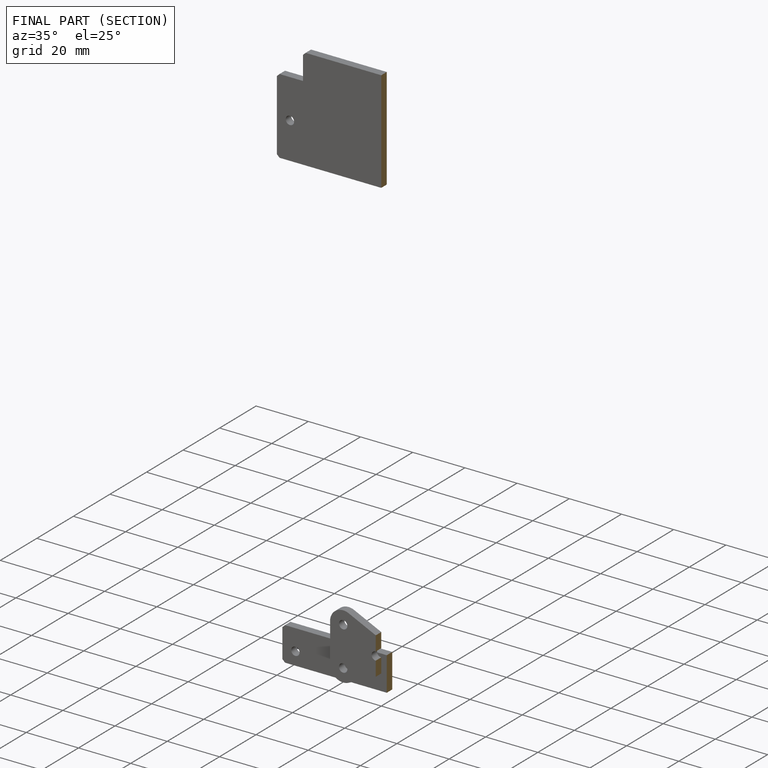
[diagram: finished part — half-section view (interior)]
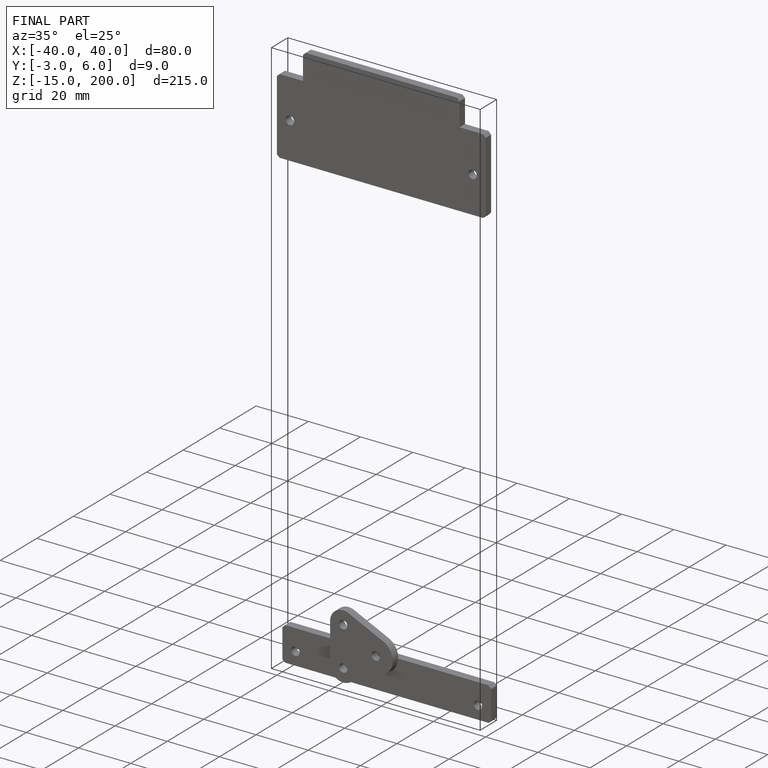
[diagram: finished part — iso view with bounding-box wireframe]
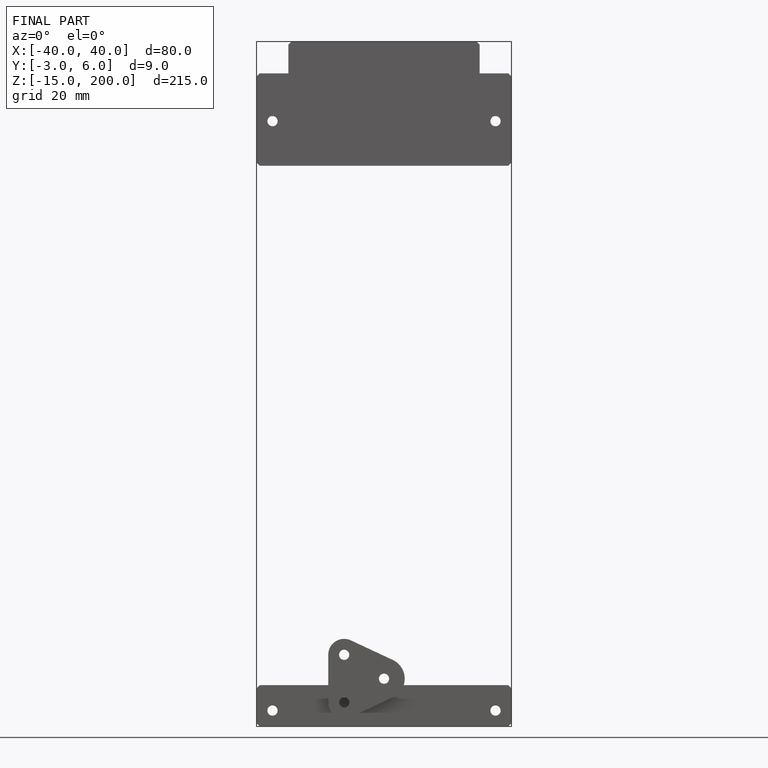
[diagram: finished part — front view with bounding-box wireframe]
